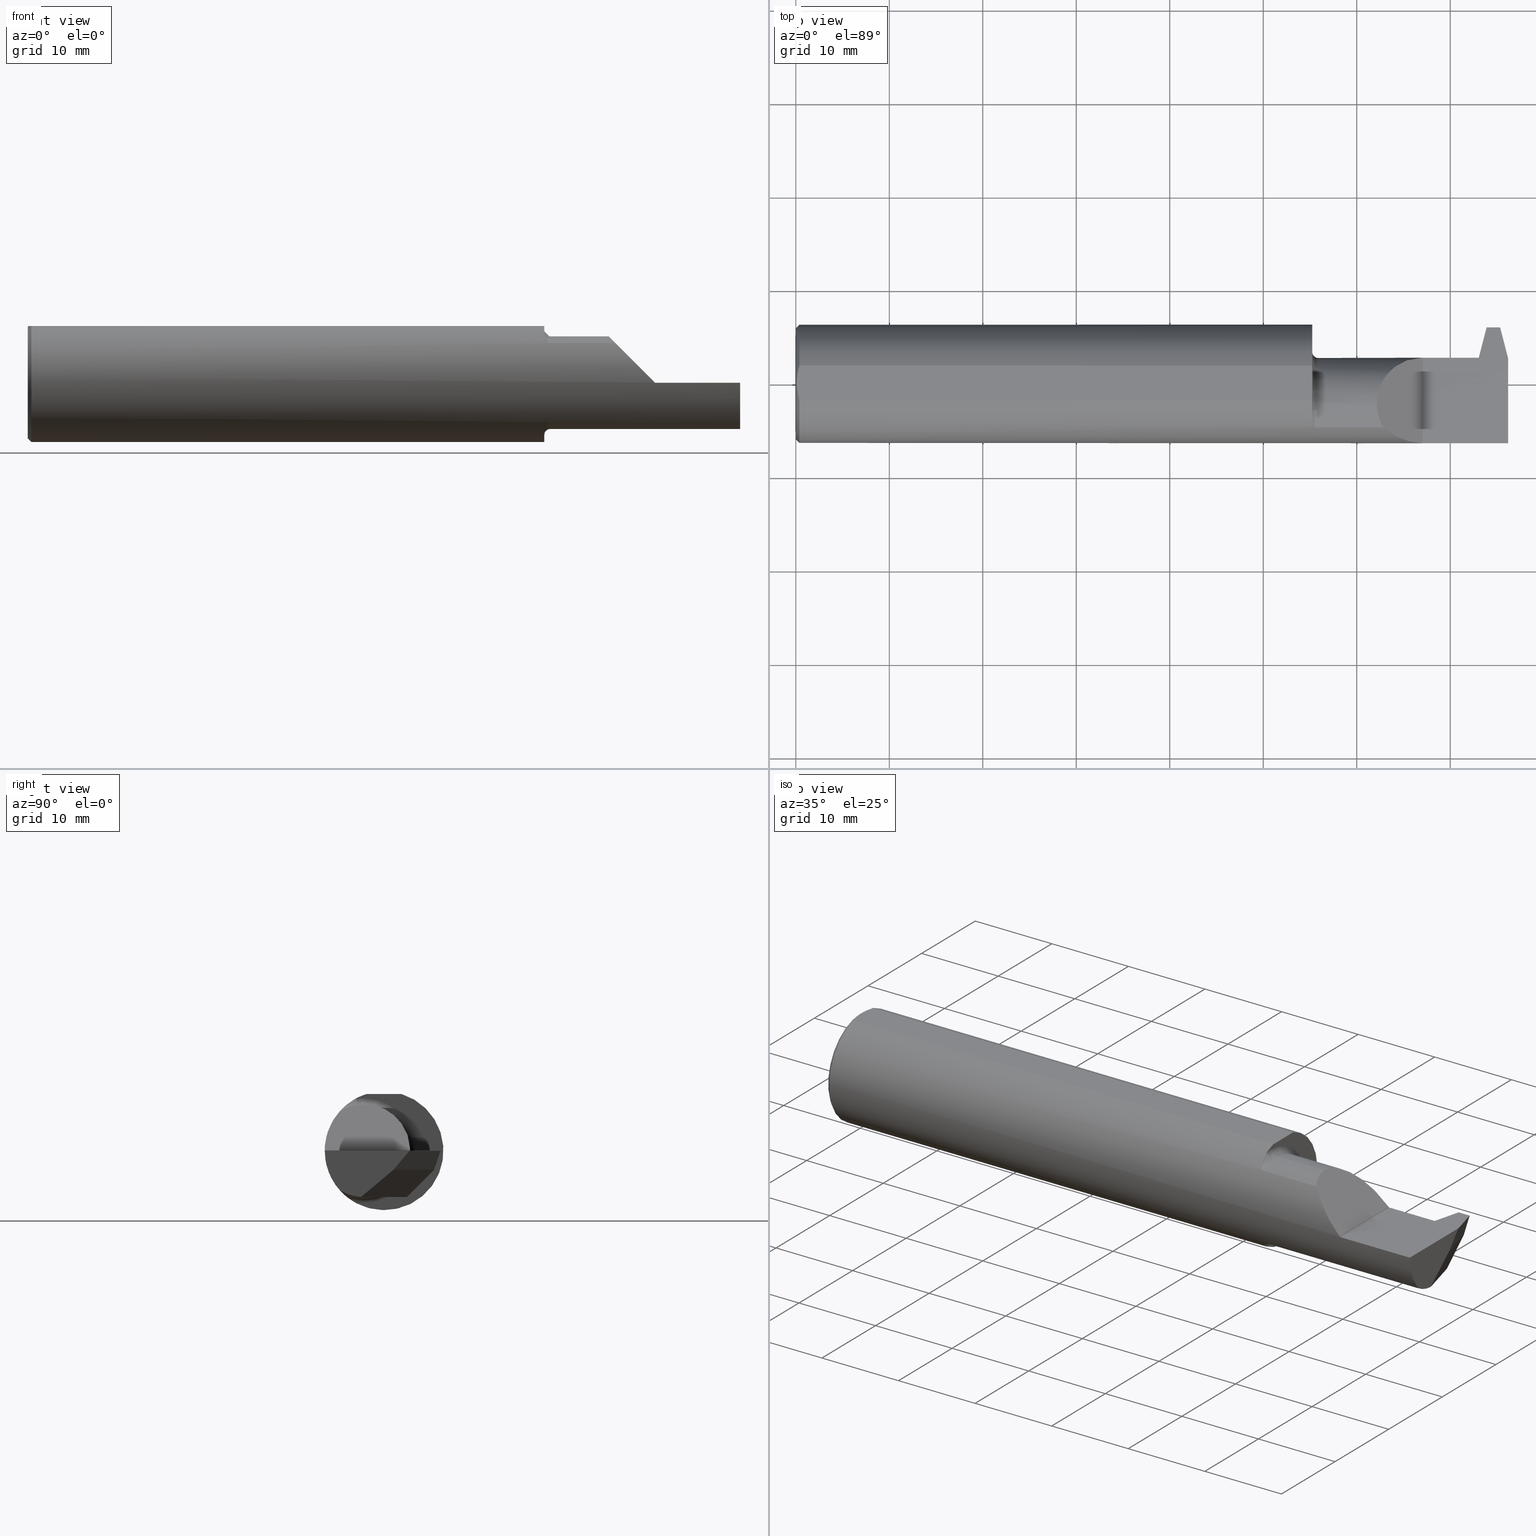
[diagram: canonical four-view strip — front | top / right | iso, engineering-drawing reading convention]
A machine part, canonical four-view strip (front | top / right | iso — engineering-drawing reading convention). The complete STEP part file that produces these views, byte-faithful:
ISO-10303-21;
HEADER;
FILE_DESCRIPTION (( 'STEP AP203' ),
    '1' );
FILE_NAME ('231093-FAT490750-6.STEP',
    '2024-05-24T15:50:27',
    ( '' ),
    ( '' ),
    'SwSTEP 2.0',
    'SolidWorks 2022',
    '' );
FILE_SCHEMA (( 'CONFIG_CONTROL_DESIGN' ));
ENDSEC;

DATA;
#1 = CARTESIAN_POINT ( 'NONE',  ( 2.446350000000000691, -0.08485000000000002263, 0.1950000000000000067 ) ) ;
#2 = DIRECTION ( 'NONE',  ( 0.000000000000000000, 0.000000000000000000, 1.000000000000000000 ) ) ;
#3 = ORIENTED_EDGE ( 'NONE', *, *, #292, .F. ) ;
#4 = VERTEX_POINT ( 'NONE', #39 ) ;
#5 = PRODUCT_RELATED_PRODUCT_CATEGORY ( 'detail', '', ( #31 ) ) ;
#6 = CARTESIAN_POINT ( 'NONE',  ( 2.193416617075089725, -0.1842851675631634878, -0.1687160800144227035 ) ) ;
#7 = ORIENTED_EDGE ( 'NONE', *, *, #927, .F. ) ;
#8 = ORIENTED_EDGE ( 'NONE', *, *, #701, .T. ) ;
#9 = DIRECTION ( 'NONE',  ( 0.000000000000000000, 0.000000000000000000, -1.000000000000000000 ) ) ;
#10 = ORIENTED_EDGE ( 'NONE', *, *, #909, .T. ) ;
#11 = AXIS2_PLACEMENT_3D ( 'NONE', #463, #308, #223 ) ;
#12 = VECTOR ( 'NONE', #260, 39.37007874015748143 ) ;
#13 = DIRECTION ( 'NONE',  ( 0.000000000000000000, 0.000000000000000000, 1.000000000000000000 ) ) ;
#14 = AXIS2_PLACEMENT_3D ( 'NONE', #475, #753, #239 ) ;
#15 = ORIENTED_EDGE ( 'NONE', *, *, #106, .T. ) ;
#16 = ORIENTED_EDGE ( 'NONE', *, *, #57, .T. ) ;
#17 = DIRECTION ( 'NONE',  ( 0.000000000000000000, 0.000000000000000000, 1.000000000000000000 ) ) ;
#18 = ADVANCED_FACE ( 'NONE', ( #773 ), #507, .T. ) ;
#19 = LINE ( 'NONE', #481, #402 ) ;
#20 = FACE_OUTER_BOUND ( 'NONE', #479, .T. ) ;
#21 = ORIENTED_EDGE ( 'NONE', *, *, #728, .T. ) ;
#22 = LINE ( 'NONE', #73, #650 ) ;
#23 = CARTESIAN_POINT ( 'NONE',  ( 2.200000000000000178, -0.08484999999999998099, 0.2200000000000000011 ) ) ;
#24 = ADVANCED_FACE ( 'NONE', ( #20 ), #82, .F. ) ;
#25 = CARTESIAN_POINT ( 'NONE',  ( 3.000000000000000444, -0.2498499999999999610, -6.123031769111886291E-17 ) ) ;
#26 = LOCAL_TIME ( 8, 50, 27.00000000000000000, #583 ) ;
#27 = ORIENTED_EDGE ( 'NONE', *, *, #831, .F. ) ;
#28 = CARTESIAN_POINT ( 'NONE',  ( 0.004000000000001628989, 0.02507688590673098211, 0.2388499999999999790 ) ) ;
#29 = VECTOR ( 'NONE', #519, 39.37007874015747433 ) ;
#30 = ADVANCED_FACE ( 'NONE', ( #949 ), #937, .F. ) ;
#31 = PRODUCT ( '231093-FAT490750-6', '231093-FAT490750-6', '', ( #736 ) ) ;
#32 = CARTESIAN_POINT ( 'NONE',  ( 2.925035482665956366, 0.09560379093680543283, -0.1950000000000000067 ) ) ;
#33 = AXIS2_PLACEMENT_3D ( 'NONE', #23, #332, #309 ) ;
#34 = PLANE ( 'NONE',  #762 ) ;
#35 = ORIENTED_EDGE ( 'NONE', *, *, #800, .T. ) ;
#36 = ADVANCED_FACE ( 'NONE', ( #643 ), #107, .F. ) ;
#37 = LINE ( 'NONE', #804, #963 ) ;
#38 = LINE ( 'NONE', #322, #339 ) ;
#39 = CARTESIAN_POINT ( 'NONE',  ( 3.000000000000000444, 0.1070816154887437449, 0.000000000000000000 ) ) ;
#40 = ORIENTED_EDGE ( 'NONE', *, *, #444, .T. ) ;
#41 = CARTESIAN_POINT ( 'NONE',  ( 0.01500000000000188856, 0.07331916529803116089, 0.2388499999999999790 ) ) ;
#42 = LINE ( 'NONE', #714, #386 ) ;
#43 = PERSON_AND_ORGANIZATION_ROLE ( 'design_supplier' ) ;
#44 = DIRECTION ( 'NONE',  ( -1.000000000000000000, -0.000000000000000000, -0.000000000000000000 ) ) ;
#45 = EDGE_LOOP ( 'NONE', ( #261, #934, #501, #640 ) ) ;
#46 =( BOUNDED_CURVE ( )  B_SPLINE_CURVE ( 3, ( #1, #295, #620, #859 ),
 .UNSPECIFIED., .F., .F. ) 
 B_SPLINE_CURVE_WITH_KNOTS ( ( 4, 4 ),
 ( 0.000000000000000000, 0.5466004890170860220 ),
 .UNSPECIFIED. ) 
 CURVE ( )  GEOMETRIC_REPRESENTATION_ITEM ( )  RATIONAL_B_SPLINE_CURVE ( ( 1.000000000000000000, 0.9752569136661353166, 0.9752569136661353166, 1.000000000000000000 ) ) 
 REPRESENTATION_ITEM ( '' )  );
#47 = DIRECTION ( 'NONE',  ( 1.000000000000000000, -0.000000000000000000, -0.000000000000000000 ) ) ;
#48 = LOCAL_TIME ( 8, 50, 27.00000000000000000, #598 ) ;
#49 = FACE_OUTER_BOUND ( 'NONE', #808, .T. ) ;
#50 = EDGE_LOOP ( 'NONE', ( #340, #751, #10, #858, #404, #812, #405, #150, #670, #135, #686, #604, #509 ) ) ;
#51 = DIRECTION ( 'NONE',  ( 0.000000000000000000, -0.2055210070593990190, -0.9786527043120508695 ) ) ;
#52 = EDGE_CURVE ( 'NONE', #965, #243, #565, .T. ) ;
#53 = CARTESIAN_POINT ( 'NONE',  ( 0.004000000000001630723, -8.838795635097487697E-18, 0.2388499999999999790 ) ) ;
#54 = DATE_AND_TIME ( #333, #77 ) ;
#55 = DIRECTION ( 'NONE',  ( 1.000000000000000000, 0.000000000000000000, 0.000000000000000000 ) ) ;
#56 = ORIENTED_EDGE ( 'NONE', *, *, #444, .F. ) ;
#57 = EDGE_CURVE ( 'NONE', #146, #731, #251, .T. ) ;
#58 = DIRECTION ( 'NONE',  ( -1.000000000000000000, 0.000000000000000000, -0.000000000000000000 ) ) ;
#59 = PERSON_AND_ORGANIZATION_ROLE ( 'classification_officer' ) ;
#60 = LINE ( 'NONE', #886, #698 ) ;
#61 = TOROIDAL_SURFACE ( 'NONE', #414, 0.2200000000000000011, 0.02500000000000000139 ) ;
#62 = VERTEX_POINT ( 'NONE', #555 ) ;
#63 = CARTESIAN_POINT ( 'NONE',  ( 0.01500000000000188856, 0.000000000000000000, -0.2498499999999999888 ) ) ;
#64 = CARTESIAN_POINT ( 'NONE',  ( 0.01500000000000188509, -0.07331916529803116089, 0.2388499999999999790 ) ) ;
#65 = APPROVAL_ROLE ( '' ) ;
#66 = CIRCLE ( 'NONE', #14, 0.2498499999999999888 ) ;
#67 = ORIENTED_EDGE ( 'NONE', *, *, #908, .F. ) ;
#68 = DIRECTION ( 'NONE',  ( 0.000000000000000000, 0.000000000000000000, 1.000000000000000000 ) ) ;
#69 = EDGE_CURVE ( 'NONE', #852, #302, #183, .T. ) ;
#70 = DIRECTION ( 'NONE',  ( 0.000000000000000000, -0.7071067811865435759, -0.7071067811865514585 ) ) ;
#71 = ORIENTED_EDGE ( 'NONE', *, *, #978, .T. ) ;
#72 = CARTESIAN_POINT ( 'NONE',  ( 2.865128570000010644, 0.2106037909368114192, -0.07999999999999277134 ) ) ;
#73 = CARTESIAN_POINT ( 'NONE',  ( 3.000000000000000444, 0.05591204140292282271, -0.06663337621120969667 ) ) ;
#74 = CYLINDRICAL_SURFACE ( 'NONE', #469, 0.1950000000000000067 ) ;
#75 = VERTEX_POINT ( 'NONE', #933 ) ;
#76 = CARTESIAN_POINT ( 'NONE',  ( 2.175000000000000266, -0.08484999999999998099, 0.2200000000000000011 ) ) ;
#77 = LOCAL_TIME ( 8, 50, 27.00000000000000000, #409 ) ;
#78 = LINE ( 'NONE', #530, #173 ) ;
#79 = ORIENTED_EDGE ( 'NONE', *, *, #69, .F. ) ;
#80 = CARTESIAN_POINT ( 'NONE',  ( 2.875000000000000444, -0.03642100170329706094, -0.1888905294713791316 ) ) ;
#81 = ORIENTED_EDGE ( 'NONE', *, *, #831, .T. ) ;
#82 = TOROIDAL_SURFACE ( 'NONE', #575, 0.2200000000000000011, 0.02500000000000000139 ) ;
#83 = EDGE_CURVE ( 'NONE', #318, #527, #579, .T. ) ;
#84 = ORIENTED_EDGE ( 'NONE', *, *, #539, .F. ) ;
#85 = CARTESIAN_POINT ( 'NONE',  ( 2.876000360214729490, 0.1101499999999999563, 0.000000000000000000 ) ) ;
#86 = ORIENTED_EDGE ( 'NONE', *, *, #496, .F. ) ;
#87 = ORIENTED_EDGE ( 'NONE', *, *, #139, .F. ) ;
#88 = VECTOR ( 'NONE', #969, 39.37007874015748143 ) ;
#89 = CARTESIAN_POINT ( 'NONE',  ( 2.875000000000000444, -0.08485000000000002263, 0.000000000000000000 ) ) ;
#90 = VERTEX_POINT ( 'NONE', #467 ) ;
#91 = VECTOR ( 'NONE', #717, 39.37007874015748854 ) ;
#92 = ADVANCED_FACE ( 'NONE', ( #334 ), #34, .T. ) ;
#93 = CARTESIAN_POINT ( 'NONE',  ( 2.869008559366363453, 0.09276125059353886038, -0.08049374921445398567 ) ) ;
#94 = VECTOR ( 'NONE', #263, 39.37007874015748143 ) ;
#95 = EDGE_CURVE ( 'NONE', #612, #876, #926, .T. ) ;
#96 = EDGE_CURVE ( 'NONE', #102, #887, #257, .T. ) ;
#97 = CARTESIAN_POINT ( 'NONE',  ( 2.844738196388977070, 0.1045796707247016871, -0.05362832365497344905 ) ) ;
#98 = VECTOR ( 'NONE', #730, 39.37007874015748854 ) ;
#99 = DIRECTION ( 'NONE',  ( -5.487493880857611755E-16, 0.6427876096865381417, -0.7660444431189791237 ) ) ;
#100 = FACE_OUTER_BOUND ( 'NONE', #376, .T. ) ;
#101 = DIRECTION ( 'NONE',  ( -1.000000000000000000, -0.000000000000000000, -0.000000000000000000 ) ) ;
#102 = VERTEX_POINT ( 'NONE', #627 ) ;
#103 = ORIENTED_EDGE ( 'NONE', *, *, #666, .F. ) ;
#104 = CARTESIAN_POINT ( 'NONE',  ( 2.865128570000000430, 0.1730363691085599620, -0.1891037151198368682 ) ) ;
#105 = CARTESIAN_POINT ( 'NONE',  ( 2.176293471060600559, -0.1495312910450006805, 0.2006610765018840559 ) ) ;
#106 = EDGE_CURVE ( 'NONE', #916, #876, #277, .T. ) ;
#107 = PLANE ( 'NONE',  #422 ) ;
#108 = EDGE_LOOP ( 'NONE', ( #537, #311, #56, #238, #231, #513, #116, #429 ) ) ;
#109 = DIRECTION ( 'NONE',  ( 1.000000000000000000, 0.000000000000000000, 0.000000000000000000 ) ) ;
#110 = LINE ( 'NONE', #182, #805 ) ;
#111 = VECTOR ( 'NONE', #169, 39.37007874015748143 ) ;
#112 = CARTESIAN_POINT ( 'NONE',  ( 2.175000000000000266, -0.1250709781968178946, -0.2162921009026707309 ) ) ;
#113 = ORIENTED_EDGE ( 'NONE', *, *, #825, .F. ) ;
#114 = CARTESIAN_POINT ( 'NONE',  ( 0.01500000000000188856, 0.07331916529803116089, 0.2388499999999999790 ) ) ;
#115 = ORIENTED_EDGE ( 'NONE', *, *, #83, .T. ) ;
#116 = ORIENTED_EDGE ( 'NONE', *, *, #792, .F. ) ;
#117 = FACE_OUTER_BOUND ( 'NONE', #696, .T. ) ;
#118 = CARTESIAN_POINT ( 'NONE',  ( 2.579423879288050170, 1.666229512840833760, -0.07999999999950303808 ) ) ;
#119 = SHAPE_DEFINITION_REPRESENTATION ( #662, #520 ) ;
#120 = AXIS2_PLACEMENT_3D ( 'NONE', #514, #360, #813 ) ;
#121 = CC_DESIGN_DATE_AND_TIME_ASSIGNMENT ( #647, #968, ( #606 ) ) ;
#122 = DIRECTION ( 'NONE',  ( 1.000000000000000000, 0.000000000000000000, 0.000000000000000000 ) ) ;
#123 = ORIENTED_EDGE ( 'NONE', *, *, #362, .F. ) ;
#124 = FACE_OUTER_BOUND ( 'NONE', #454, .T. ) ;
#125 = AXIS2_PLACEMENT_3D ( 'NONE', #744, #284, #68 ) ;
#126 = EDGE_CURVE ( 'NONE', #590, #614, #870, .T. ) ;
#127 = CARTESIAN_POINT ( 'NONE',  ( 2.875000000000000444, 0.1426008217676462408, -0.03867338342422693004 ) ) ;
#128 = DIRECTION ( 'NONE',  ( 0.000000000000000000, 0.000000000000000000, 1.000000000000000000 ) ) ;
#129 = EDGE_CURVE ( 'NONE', #920, #390, #440, .T. ) ;
#130 = ORIENTED_EDGE ( 'NONE', *, *, #178, .T. ) ;
#131 = PLANE ( 'NONE',  #465 ) ;
#132 = DIRECTION ( 'NONE',  ( 0.000000000000000000, 0.000000000000000000, -1.000000000000000000 ) ) ;
#133 = APPROVAL_STATUS ( 'not_yet_approved' ) ;
#134 = CARTESIAN_POINT ( 'NONE',  ( 0.000000000000000000, 0.000000000000000000, 0.000000000000000000 ) ) ;
#135 = ORIENTED_EDGE ( 'NONE', *, *, #164, .T. ) ;
#136 = DIRECTION ( 'NONE',  ( 0.000000000000000000, 0.000000000000000000, -1.000000000000000000 ) ) ;
#137 = CARTESIAN_POINT ( 'NONE',  ( 2.640000000000000124, 0.2999999999999999889, -6.123031769111886291E-17 ) ) ;
#138 = CYLINDRICAL_SURFACE ( 'NONE', #814, 0.1950000000000000067 ) ;
#139 = EDGE_CURVE ( 'NONE', #743, #460, #840, .T. ) ;
#140 = ORIENTED_EDGE ( 'NONE', *, *, #406, .T. ) ;
#141 = DIRECTION ( 'NONE',  ( -1.000000000000000000, 7.016512825954649552E-14, 7.016512825954729069E-14 ) ) ;
#142 = CARTESIAN_POINT ( 'NONE',  ( 2.200000000000000178, -0.08485000000000002263, -0.2200000000000000011 ) ) ;
#143 = AXIS2_PLACEMENT_3D ( 'NONE', #872, #420, #732 ) ;
#144 = LENGTH_MEASURE_WITH_UNIT ( LENGTH_MEASURE( 0.02539999999999999897 ), #428 );
#145 = CIRCLE ( 'NONE', #704, 0.2498499999999999888 ) ;
#146 = VERTEX_POINT ( 'NONE', #835 ) ;
#147 = DIRECTION ( 'NONE',  ( 1.000000000000000000, 0.000000000000000000, 0.000000000000000000 ) ) ;
#148 = VECTOR ( 'NONE', #757, 39.37007874015748143 ) ;
#149 = LINE ( 'NONE', #367, #218 ) ;
#150 = ORIENTED_EDGE ( 'NONE', *, *, #269, .F. ) ;
#151 = CARTESIAN_POINT ( 'NONE',  ( 2.856000360214729472, 0.1101499999999999285, 0.000000000000000000 ) ) ;
#152 = EDGE_CURVE ( 'NONE', #283, #938, #609, .T. ) ;
#153 = LINE ( 'NONE', #449, #148 ) ;
#154 = CARTESIAN_POINT ( 'NONE',  ( 2.188813695058260844, -0.1803944576976549974, -0.1728909059399327819 ) ) ;
#155 = ORIENTED_EDGE ( 'NONE', *, *, #317, .T. ) ;
#156 = DIRECTION ( 'NONE',  ( 0.2503800040544345018, 0.9681476403781096307, -0.000000000000000000 ) ) ;
#157 = EDGE_LOOP ( 'NONE', ( #81, #923, #755, #35 ) ) ;
#158 = AXIS2_PLACEMENT_3D ( 'NONE', #702, #918, #979 ) ;
#159 = ORIENTED_EDGE ( 'NONE', *, *, #539, .T. ) ;
#160 = ORIENTED_EDGE ( 'NONE', *, *, #457, .T. ) ;
#161 = DIRECTION ( 'NONE',  ( 1.000000000000000000, -0.000000000000000000, -0.000000000000000000 ) ) ;
#162 = EDGE_CURVE ( 'NONE', #612, #171, #188, .T. ) ;
#163 = ORIENTED_EDGE ( 'NONE', *, *, #865, .F. ) ;
#164 = EDGE_CURVE ( 'NONE', #664, #359, #836, .T. ) ;
#165 = CARTESIAN_POINT ( 'NONE',  ( 0.000000000000000000, 0.1000000000000000056, 0.2388499999999999790 ) ) ;
#166 = AXIS2_PLACEMENT_3D ( 'NONE', #528, #959, #595 ) ;
#167 = CARTESIAN_POINT ( 'NONE',  ( 2.640000000000000124, 0.2999999999999999889, -6.123031769111886291E-17 ) ) ;
#168 = LOCAL_TIME ( 8, 50, 27.00000000000000000, #807 ) ;
#169 = DIRECTION ( 'NONE',  ( 1.000000000000000000, 0.000000000000000000, 0.000000000000000000 ) ) ;
#170 = CIRCLE ( 'NONE', #884, 0.1950000000000000067 ) ;
#171 = VERTEX_POINT ( 'NONE', #305 ) ;
#172 = CARTESIAN_POINT ( 'NONE',  ( 2.998911043542020760, -0.09271680594006928566, -0.1948809690765552771 ) ) ;
#173 = VECTOR ( 'NONE', #296, 39.37007874015748143 ) ;
#174 = CARTESIAN_POINT ( 'NONE',  ( 3.000000000000000444, 0.2999999999999999889, -6.123031769111886291E-17 ) ) ;
#175 = ORIENTED_EDGE ( 'NONE', *, *, #331, .F. ) ;
#176 = ORIENTED_EDGE ( 'NONE', *, *, #69, .T. ) ;
#177 = PLANE ( 'NONE',  #576 ) ;
#178 = EDGE_CURVE ( 'NONE', #726, #283, #78, .T. ) ;
#179 = DIRECTION ( 'NONE',  ( 0.000000000000000000, 0.000000000000000000, -1.000000000000000000 ) ) ;
#180 = ORIENTED_EDGE ( 'NONE', *, *, #690, .F. ) ;
#181 = DIRECTION ( 'NONE',  ( 0.000000000000000000, -1.000000000000000000, 0.000000000000000000 ) ) ;
#182 = CARTESIAN_POINT ( 'NONE',  ( 2.876000360214729490, 0.09334967799373215802, -0.07999999999997724209 ) ) ;
#183 = LINE ( 'NONE', #724, #12 ) ;
#184 = VERTEX_POINT ( 'NONE', #623 ) ;
#185 = DIRECTION ( 'NONE',  ( -1.000000000000000000, -0.000000000000000000, -0.000000000000000000 ) ) ;
#186 = VECTOR ( 'NONE', #853, 39.37007874015748143 ) ;
#187 = FACE_OUTER_BOUND ( 'NONE', #459, .T. ) ;
#188 = CIRCLE ( 'NONE', #240, 0.1950000000000000344 ) ;
#189 = DIRECTION ( 'NONE',  ( 1.000000000000000000, 0.000000000000000000, 0.000000000000000000 ) ) ;
#190 = ORIENTED_EDGE ( 'NONE', *, *, #733, .T. ) ;
#191 = DIRECTION ( 'NONE',  ( -0.1200238624775789714, -0.3232146245633265025, -0.9386834284807370476 ) ) ;
#192 = LINE ( 'NONE', #511, #770 ) ;
#193 = APPROVAL_ROLE ( '' ) ;
#194 = ORIENTED_EDGE ( 'NONE', *, *, #782, .T. ) ;
#195 = ADVANCED_FACE ( 'NONE', ( #754 ), #74, .T. ) ;
#196 = EDGE_CURVE ( 'NONE', #146, #4, #554, .T. ) ;
#197 = CARTESIAN_POINT ( 'NONE',  ( 2.869008559366363453, -0.08485000000000002263, 0.000000000000000000 ) ) ;
#198 = DIRECTION ( 'NONE',  ( 0.7071067811865547892, 0.000000000000000000, -0.7071067811865402453 ) ) ;
#199 = VECTOR ( 'NONE', #756, 39.37007874015748143 ) ;
#200 = APPLICATION_PROTOCOL_DEFINITION ( 'international standard', 'config_control_design', 1994, #410 ) ;
#201 = ORIENTED_EDGE ( 'NONE', *, *, #549, .T. ) ;
#202 = LINE ( 'NONE', #877, #607 ) ;
#203 = CARTESIAN_POINT ( 'NONE',  ( 2.526400416310738084, 0.1093588493630081732, 0.1149495836892616141 ) ) ;
#204 = PERSON_AND_ORGANIZATION ( #653, #552 ) ;
#205 = VECTOR ( 'NONE', #571, 39.37007874015748143 ) ;
#206 = ORIENTED_EDGE ( 'NONE', *, *, #847, .F. ) ;
#207 = DIRECTION ( 'NONE',  ( 0.000000000000000000, -0.7660444431189791237, -0.6427876096865380307 ) ) ;
#208 = CARTESIAN_POINT ( 'NONE',  ( 0.01500000000000188856, 0.000000000000000000, 0.000000000000000000 ) ) ;
#209 = EDGE_CURVE ( 'NONE', #213, #743, #110, .T. ) ;
#210 = CARTESIAN_POINT ( 'NONE',  ( 2.889008559366363471, 3.895685540389323798, 3.110538619748298483 ) ) ;
#211 = CARTESIAN_POINT ( 'NONE',  ( 3.000000000000000444, 0.06286025547322807161, -0.05272348611339076202 ) ) ;
#212 = PERSON_AND_ORGANIZATION_ROLE ( 'design_owner' ) ;
#213 = VERTEX_POINT ( 'NONE', #637 ) ;
#214 = CARTESIAN_POINT ( 'NONE',  ( 2.944425059697839853, 0.1705777223505302587, -0.1950000000000000622 ) ) ;
#215 = LINE ( 'NONE', #929, #384 ) ;
#216 = AXIS2_PLACEMENT_3D ( 'NONE', #829, #687, #289 ) ;
#217 = DIRECTION ( 'NONE',  ( 0.000000000000000000, 0.000000000000000000, 1.000000000000000000 ) ) ;
#218 = VECTOR ( 'NONE', #523, 39.37007874015748854 ) ;
#219 = ORIENTED_EDGE ( 'NONE', *, *, #482, .F. ) ;
#220 = CARTESIAN_POINT ( 'NONE',  ( 2.200000000000000178, -0.1862082793164408501, -0.1665878123213411499 ) ) ;
#221 = ADVANCED_FACE ( 'NONE', ( #476 ), #706, .F. ) ;
#222 = CIRCLE ( 'NONE', #303, 0.2498499999999999888 ) ;
#223 = DIRECTION ( 'NONE',  ( 0.000000000000000000, 0.000000000000000000, -1.000000000000000000 ) ) ;
#224 = DIRECTION ( 'NONE',  ( -1.000000000000000000, -0.000000000000000000, -0.000000000000000000 ) ) ;
#225 = ORIENTED_EDGE ( 'NONE', *, *, #482, .T. ) ;
#226 = DIRECTION ( 'NONE',  ( 0.000000000000000000, 0.000000000000000000, -1.000000000000000000 ) ) ;
#227 = ORIENTED_EDGE ( 'NONE', *, *, #635, .T. ) ;
#228 = CARTESIAN_POINT ( 'NONE',  ( 2.196370180837897035, -0.1857053627698156684, -0.1671515984899562823 ) ) ;
#229 = ORIENTED_EDGE ( 'NONE', *, *, #246, .F. ) ;
#230 = EDGE_CURVE ( 'NONE', #283, #887, #525, .T. ) ;
#231 = ORIENTED_EDGE ( 'NONE', *, *, #830, .T. ) ;
#232 = DIRECTION ( 'NONE',  ( -0.000000000000000000, 0.7660444431189790127, 0.6427876096865381417 ) ) ;
#233 = EDGE_LOOP ( 'NONE', ( #618, #325 ) ) ;
#234 = ORIENTED_EDGE ( 'NONE', *, *, #230, .F. ) ;
#235 = FACE_OUTER_BOUND ( 'NONE', #267, .T. ) ;
#236 = CARTESIAN_POINT ( 'NONE',  ( 2.196379501438356030, -0.1857108401697049604, 0.1671455953877453160 ) ) ;
#237 = CARTESIAN_POINT ( 'NONE',  ( 2.180828878631586143, -0.1657311752962013496, -0.1871053287252796016 ) ) ;
#238 = ORIENTED_EDGE ( 'NONE', *, *, #209, .T. ) ;
#239 = DIRECTION ( 'NONE',  ( 0.000000000000000000, 0.000000000000000000, -1.000000000000000000 ) ) ;
#240 = AXIS2_PLACEMENT_3D ( 'NONE', #758, #161, #768 ) ;
#241 = CC_DESIGN_PERSON_AND_ORGANIZATION_ASSIGNMENT ( #962, #43, ( #882 ) ) ;
#242 = CARTESIAN_POINT ( 'NONE',  ( 2.187118484253501194, -0.1780926133871663652, 0.1752686114729513633 ) ) ;
#243 = VERTEX_POINT ( 'NONE', #632 ) ;
#244 = VERTEX_POINT ( 'NONE', #941 ) ;
#245 = DIRECTION ( 'NONE',  ( 1.000000000000000000, 8.537024980200913523E-16, -0.000000000000000000 ) ) ;
#246 = EDGE_CURVE ( 'NONE', #390, #651, #19, .T. ) ;
#247 = DIRECTION ( 'NONE',  ( 0.000000000000000000, 0.000000000000000000, -1.000000000000000000 ) ) ;
#248 = EDGE_LOOP ( 'NONE', ( #27, #115, #951, #531, #306, #86 ) ) ;
#249 = DIRECTION ( 'NONE',  ( 1.000000000000000000, 0.000000000000000000, 0.000000000000000000 ) ) ;
#250 = PLANE ( 'NONE',  #304 ) ;
#251 = LINE ( 'NONE', #25, #950 ) ;
#252 = EDGE_LOOP ( 'NONE', ( #917, #130, #791, #335 ) ) ;
#253 = LINE ( 'NONE', #485, #538 ) ;
#254 = VECTOR ( 'NONE', #667, 39.37007874015748854 ) ;
#255 = FACE_OUTER_BOUND ( 'NONE', #880, .T. ) ;
#256 = CALENDAR_DATE ( 2024, 24, 5 ) ;
#257 = CIRCLE ( 'NONE', #819, 0.2200000000000000011 ) ;
#258 = EDGE_CURVE ( 'NONE', #624, #302, #646, .T. ) ;
#259 = VECTOR ( 'NONE', #544, 39.37007874015748143 ) ;
#260 = DIRECTION ( 'NONE',  ( -1.000000000000000000, 4.600533710977337560E-14, 0.000000000000000000 ) ) ;
#261 = ORIENTED_EDGE ( 'NONE', *, *, #323, .F. ) ;
#262 = DIRECTION ( 'NONE',  ( 0.000000000000000000, -1.000000000000000000, 2.833219857418689288E-16 ) ) ;
#263 = DIRECTION ( 'NONE',  ( -1.000000000000000000, -8.537024980200911551E-16, 2.174519450576732134E-31 ) ) ;
#264 = DATE_TIME_ROLE ( 'creation_date' ) ;
#265 = DIRECTION ( 'NONE',  ( 0.000000000000000000, 0.000000000000000000, -1.000000000000000000 ) ) ;
#266 = ADVANCED_FACE ( 'NONE', ( #392 ), #250, .T. ) ;
#267 = EDGE_LOOP ( 'NONE', ( #452, #442, #190, #518, #381 ) ) ;
#268 = CARTESIAN_POINT ( 'NONE',  ( 2.889008559366363471, 0.09334967799373290742, -0.07999999999997674249 ) ) ;
#269 = EDGE_CURVE ( 'NONE', #541, #869, #695, .T. ) ;
#270 = CARTESIAN_POINT ( 'NONE',  ( 2.875000000000000444, 0.1101499999999999563, 7.040103506324968706E-18 ) ) ;
#271 = APPLICATION_PROTOCOL_DEFINITION ( 'international standard', 'config_control_design', 1994, #461 ) ;
#272 = ORIENTED_EDGE ( 'NONE', *, *, #729, .F. ) ;
#273 = PLANE ( 'NONE',  #419 ) ;
#274 = VECTOR ( 'NONE', #249, 39.37007874015748143 ) ;
#275 = LINE ( 'NONE', #801, #953 ) ;
#276 = PERSON_AND_ORGANIZATION_ROLE ( 'creator' ) ;
#277 = B_SPLINE_CURVE_WITH_KNOTS ( 'NONE', 3,
 ( #112, #778, #483, #237, #850, #315, #154, #542, #6, #228, #446, #617 ),
 .UNSPECIFIED., .F., .F.,
 ( 4, 2, 2, 2, 2, 4 ),
 ( 0.000000000000000000, 0.001097037258504890162, 0.001645555887757337412, 0.001919815202383554856, 0.002056944859696663037, 0.002194074517009771217 ),
 .UNSPECIFIED. ) ;
#278 = DIRECTION ( 'NONE',  ( 0.000000000000000000, 0.000000000000000000, -1.000000000000000000 ) ) ;
#279 = ORIENTED_EDGE ( 'NONE', *, *, #960, .T. ) ;
#280 = FACE_OUTER_BOUND ( 'NONE', #300, .T. ) ;
#281 = CARTESIAN_POINT ( 'NONE',  ( 2.876000360214729490, 0.1101499999999999563, 0.000000000000000000 ) ) ;
#282 = CALENDAR_DATE ( 2024, 24, 5 ) ;
#283 = VERTEX_POINT ( 'NONE', #781 ) ;
#284 = DIRECTION ( 'NONE',  ( -1.000000000000000000, -0.000000000000000000, -0.000000000000000000 ) ) ;
#285 = CARTESIAN_POINT ( 'NONE',  ( 3.000000000000000444, -0.1862082793164407113, -0.1665878123213411777 ) ) ;
#286 = CARTESIAN_POINT ( 'NONE',  ( 2.175000000000000266, -0.07331916529803114702, 0.2388499999999999790 ) ) ;
#287 = AXIS2_PLACEMENT_3D ( 'NONE', #901, #879, #349 ) ;
#288 = ORIENTED_EDGE ( 'NONE', *, *, #548, .T. ) ;
#289 = DIRECTION ( 'NONE',  ( -0.2945363905204977928, 0.000000000000000000, 0.9556402642517510815 ) ) ;
#290 = AXIS2_PLACEMENT_3D ( 'NONE', #134, #128, #55 ) ;
#291 = CARTESIAN_POINT ( 'NONE',  ( 2.950171339358596878, 0.09560379093680541895, -0.1950000000000000344 ) ) ;
#292 = EDGE_CURVE ( 'NONE', #938, #102, #320, .T. ) ;
#293 = ORIENTED_EDGE ( 'NONE', *, *, #824, .F. ) ;
#294 = LINE ( 'NONE', #214, #29 ) ;
#295 = CARTESIAN_POINT ( 'NONE',  ( 2.446349999999999802, -0.1208286073214975276, 0.1950000000000000344 ) ) ;
#296 = DIRECTION ( 'NONE',  ( -1.000000000000000000, -0.000000000000000000, -0.000000000000000000 ) ) ;
#297 = ORIENTED_EDGE ( 'NONE', *, *, #597, .T. ) ;
#298 = DIRECTION ( 'NONE',  ( -1.000000000000000000, -0.000000000000000000, -0.000000000000000000 ) ) ;
#299 = VECTOR ( 'NONE', #665, 39.37007874015748143 ) ;
#300 = EDGE_LOOP ( 'NONE', ( #234, #375, #644, #494 ) ) ;
#301 = ADVANCED_FACE ( 'NONE', ( #187 ), #936, .T. ) ;
#302 = VERTEX_POINT ( 'NONE', #403 ) ;
#303 = AXIS2_PLACEMENT_3D ( 'NONE', #492, #356, #132 ) ;
#304 = AXIS2_PLACEMENT_3D ( 'NONE', #408, #790, #247 ) ;
#305 = CARTESIAN_POINT ( 'NONE',  ( 3.000000000000000444, -0.09664390695082392124, -0.1946430162087387505 ) ) ;
#306 = ORIENTED_EDGE ( 'NONE', *, *, #374, .T. ) ;
#307 = ORIENTED_EDGE ( 'NONE', *, *, #374, .F. ) ;
#308 = DIRECTION ( 'NONE',  ( 1.000000000000000000, 0.000000000000000000, 0.000000000000000000 ) ) ;
#309 = DIRECTION ( 'NONE',  ( 0.000000000000000000, 0.000000000000000000, 1.000000000000000000 ) ) ;
#310 = ORIENTED_EDGE ( 'NONE', *, *, #825, .T. ) ;
#311 = ORIENTED_EDGE ( 'NONE', *, *, #533, .F. ) ;
#312 = DIRECTION ( 'NONE',  ( 0.000000000000000000, 0.000000000000000000, -1.000000000000000000 ) ) ;
#313 = DIRECTION ( 'NONE',  ( -0.000000000000000000, 1.000000000000000000, -0.000000000000000000 ) ) ;
#314 =( GEOMETRIC_REPRESENTATION_CONTEXT ( 3 ) GLOBAL_UNCERTAINTY_ASSIGNED_CONTEXT ( ( #382 ) ) GLOBAL_UNIT_ASSIGNED_CONTEXT ( ( #599, #439, #896 ) ) REPRESENTATION_CONTEXT ( 'NONE', 'WORKASPACE' ) );
#315 = CARTESIAN_POINT ( 'NONE',  ( 2.187135037345901978, -0.1781181496382315821, -0.1752430622336076105 ) ) ;
#316 = VECTOR ( 'NONE', #181, 39.37007874015748143 ) ;
#317 = EDGE_CURVE ( 'NONE', #244, #527, #42, .T. ) ;
#318 = VERTEX_POINT ( 'NONE', #32 ) ;
#319 = CARTESIAN_POINT ( 'NONE',  ( 2.940817552797493573, 0.1700572141076777954, -0.1977558094796711408 ) ) ;
#320 = B_SPLINE_CURVE_WITH_KNOTS ( 'NONE', 3,
 ( #466, #925, #236, #777, #709, #569, #242, #866, #722, #105, #545, #559 ),
 .UNSPECIFIED., .F., .F.,
 ( 4, 2, 2, 2, 2, 4 ),
 ( 0.000000000000000000, 0.0001393948641635522000, 0.0002787897283271044001, 0.0005575794566542089086, 0.001115158913308419552, 0.002230317826616845175 ),
 .UNSPECIFIED. ) ;
#321 = VECTOR ( 'NONE', #378, 39.37007874015748143 ) ;
#322 = CARTESIAN_POINT ( 'NONE',  ( 2.928472014132509127, 0.2459435353079856557, -0.07999999999992046806 ) ) ;
#323 = EDGE_CURVE ( 'NONE', #743, #624, #38, .T. ) ;
#324 = DIRECTION ( 'NONE',  ( 0.000000000000000000, 0.7660444431189790127, 0.6427876096865380307 ) ) ;
#325 = ORIENTED_EDGE ( 'NONE', *, *, #851, .F. ) ;
#326 = CARTESIAN_POINT ( 'NONE',  ( 3.000000000000000444, 0.000000000000000000, 0.000000000000000000 ) ) ;
#327 = CARTESIAN_POINT ( 'NONE',  ( 0.004000000000001630723, -8.838795635097487697E-18, 0.2388499999999999790 ) ) ;
#328 = DIRECTION ( 'NONE',  ( -0.7071067811865494601, 0.000000000000000000, -0.7071067811865456854 ) ) ;
#329 = VERTEX_POINT ( 'NONE', #327 ) ;
#330 = LINE ( 'NONE', #319, #833 ) ;
#331 = EDGE_CURVE ( 'NONE', #75, #841, #621, .T. ) ;
#332 = DIRECTION ( 'NONE',  ( 0.000000000000000000, 1.000000000000000000, -1.224646799147353207E-16 ) ) ;
#333 = CALENDAR_DATE ( 2024, 24, 5 ) ;
#334 = FACE_OUTER_BOUND ( 'NONE', #108, .T. ) ;
#335 = ORIENTED_EDGE ( 'NONE', *, *, #908, .T. ) ;
#336 = DIRECTION ( 'NONE',  ( 0.000000000000000000, 0.000000000000000000, 1.000000000000000000 ) ) ;
#337 = DIRECTION ( 'NONE',  ( -0.000000000000000000, 1.000000000000000000, -2.833219857418689288E-16 ) ) ;
#338 = AXIS2_PLACEMENT_3D ( 'NONE', #699, #450, #9 ) ;
#339 = VECTOR ( 'NONE', #718, 39.37007874015748854 ) ;
#340 = ORIENTED_EDGE ( 'NONE', *, *, #129, .T. ) ;
#341 = CARTESIAN_POINT ( 'NONE',  ( 2.175000000000000266, 0.000000000000000000, 0.000000000000000000 ) ) ;
#342 = LINE ( 'NONE', #655, #94 ) ;
#343 = SECURITY_CLASSIFICATION_LEVEL ( 'unclassified' ) ;
#344 = EDGE_CURVE ( 'NONE', #731, #75, #145, .T. ) ;
#345 = ORIENTED_EDGE ( 'NONE', *, *, #742, .T. ) ;
#346 = DIRECTION ( 'NONE',  ( 0.2055210070593990190, 0.000000000000000000, 0.9786527043120508695 ) ) ;
#347 = APPROVAL ( #656, 'UNSPECIFIED' ) ;
#348 = CARTESIAN_POINT ( 'NONE',  ( 0.004000000000001633325, -0.02498450228869505615, 0.2388499999999999790 ) ) ;
#349 = DIRECTION ( 'NONE',  ( 0.2503800040544378325, -0.9681476403781086315, 0.000000000000000000 ) ) ;
#350 = ORIENTED_EDGE ( 'NONE', *, *, #915, .F. ) ;
#351 = DIRECTION ( 'NONE',  ( -0.000000000000000000, 0.000000000000000000, 1.000000000000000000 ) ) ;
#352 = LINE ( 'NONE', #211, #948 ) ;
#353 = PERSON_AND_ORGANIZATION ( #653, #552 ) ;
#354 = DIRECTION ( 'NONE',  ( -1.000000000000000000, -0.000000000000000000, -0.000000000000000000 ) ) ;
#355 = ORIENTED_EDGE ( 'NONE', *, *, #209, .F. ) ;
#356 = DIRECTION ( 'NONE',  ( 1.000000000000000000, -0.000000000000000000, -0.000000000000000000 ) ) ;
#357 = FACE_OUTER_BOUND ( 'NONE', #252, .T. ) ;
#358 = APPROVAL ( #133, 'UNSPECIFIED' ) ;
#359 = VERTEX_POINT ( 'NONE', #878 ) ;
#360 = DIRECTION ( 'NONE',  ( -1.000000000000000000, -0.000000000000000000, -0.000000000000000000 ) ) ;
#361 = CARTESIAN_POINT ( 'NONE',  ( 0.000000000000000000, 2.967931517733600783E-17, 0.2348499999999984211 ) ) ;
#362 = EDGE_CURVE ( 'NONE', #651, #418, #818, .T. ) ;
#363 = CARTESIAN_POINT ( 'NONE',  ( 2.175000000000000266, -0.08485000000000002263, 0.000000000000000000 ) ) ;
#364 = ORIENTED_EDGE ( 'NONE', *, *, #622, .T. ) ;
#365 = CARTESIAN_POINT ( 'NONE',  ( 2.200000000000000178, -0.08485000000000002263, 0.000000000000000000 ) ) ;
#366 = APPROVAL_PERSON_ORGANIZATION ( #802, #347, #193 ) ;
#367 = CARTESIAN_POINT ( 'NONE',  ( 2.959700516520066049, 0.2877597428298782622, -0.002844048106925039631 ) ) ;
#368 = CIRCLE ( 'NONE', #902, 0.2498499999999999888 ) ;
#369 = EDGE_CURVE ( 'NONE', #590, #845, #192, .T. ) ;
#370 = B_SPLINE_CURVE_WITH_KNOTS ( 'NONE', 3,
 ( #53, #348, #577, #64 ),
 .UNSPECIFIED., .F., .F.,
 ( 4, 4 ),
 ( 0.007106848166584502080, 0.008972081732692345837 ),
 .UNSPECIFIED. ) ;
#371 = ORIENTED_EDGE ( 'NONE', *, *, #733, .F. ) ;
#372 = CARTESIAN_POINT ( 'NONE',  ( 2.175000000000000266, -0.1250709781968178946, -0.2162921009026707309 ) ) ;
#373 = AXIS2_PLACEMENT_3D ( 'NONE', #167, #472, #849 ) ;
#374 = EDGE_CURVE ( 'NONE', #390, #62, #275, .T. ) ;
#375 = ORIENTED_EDGE ( 'NONE', *, *, #909, .F. ) ;
#376 = EDGE_LOOP ( 'NONE', ( #793, #573, #910, #79 ) ) ;
#377 = EDGE_CURVE ( 'NONE', #329, #243, #370, .T. ) ;
#378 = DIRECTION ( 'NONE',  ( -0.1571540165094710007, 0.2029672248372562104, 0.9664920696709329295 ) ) ;
#379 = VERTEX_POINT ( 'NONE', #415 ) ;
#380 = AXIS2_PLACEMENT_3D ( 'NONE', #964, #122, #265 ) ;
#381 = ORIENTED_EDGE ( 'NONE', *, *, #52, .F. ) ;
#382 = UNCERTAINTY_MEASURE_WITH_UNIT (LENGTH_MEASURE( 1.000000000000000082E-05 ), #599, 'distance_accuracy_value', 'NONE');
#383 = ORIENTED_EDGE ( 'NONE', *, *, #406, .F. ) ;
#384 = VECTOR ( 'NONE', #921, 39.37007874015748143 ) ;
#385 = CARTESIAN_POINT ( 'NONE',  ( 3.000000000000000444, 0.000000000000000000, 0.000000000000000000 ) ) ;
#386 = VECTOR ( 'NONE', #787, 39.37007874015748854 ) ;
#387 = DIRECTION ( 'NONE',  ( 1.000000000000000000, 8.537024980200913523E-16, -4.759750529592650097E-32 ) ) ;
#388 = DIRECTION ( 'NONE',  ( -1.000000000000000000, -0.000000000000000000, -0.000000000000000000 ) ) ;
#389 = CC_DESIGN_PERSON_AND_ORGANIZATION_ASSIGNMENT ( #204, #59, ( #606 ) ) ;
#390 = VERTEX_POINT ( 'NONE', #438 ) ;
#391 = DIRECTION ( 'NONE',  ( -1.000000000000000000, -0.000000000000000000, -0.000000000000000000 ) ) ;
#392 = FACE_OUTER_BOUND ( 'NONE', #462, .T. ) ;
#393 = EDGE_LOOP ( 'NONE', ( #676, #871, #897, #3 ) ) ;
#394 = ORIENTED_EDGE ( 'NONE', *, *, #913, .F. ) ;
#395 = ADVANCED_FACE ( 'NONE', ( #749 ), #895, .F. ) ;
#396 = CARTESIAN_POINT ( 'NONE',  ( 2.997857342922081614, -0.08878430348549444517, -0.1950000000000000344 ) ) ;
#397 = CARTESIAN_POINT ( 'NONE',  ( 2.875000000000000444, 0.1101499999999999840, 0.000000000000000000 ) ) ;
#398 = DIRECTION ( 'NONE',  ( 1.000000000000000000, -0.000000000000000000, -0.000000000000000000 ) ) ;
#399 = CIRCLE ( 'NONE', #648, 0.2498499999999999888 ) ;
#400 = EDGE_LOOP ( 'NONE', ( #279, #272 ) ) ;
#401 = CARTESIAN_POINT ( 'NONE',  ( 2.963000000000000078, 0.2501499999999999280, 0.000000000000000000 ) ) ;
#402 = VECTOR ( 'NONE', #101, 39.37007874015748143 ) ;
#403 = CARTESIAN_POINT ( 'NONE',  ( 2.909103411012277540, 0.2381499999999800443, -6.123031769111886291E-17 ) ) ;
#404 = ORIENTED_EDGE ( 'NONE', *, *, #457, .F. ) ;
#405 = ORIENTED_EDGE ( 'NONE', *, *, #875, .T. ) ;
#406 = EDGE_CURVE ( 'NONE', #243, #845, #222, .T. ) ;
#407 = DIRECTION ( 'NONE',  ( 0.000000000000000000, 0.000000000000000000, -1.000000000000000000 ) ) ;
#408 = CARTESIAN_POINT ( 'NONE',  ( 2.175000000000000266, 0.3101499999999999813, 0.000000000000000000 ) ) ;
#409 = COORDINATED_UNIVERSAL_TIME_OFFSET ( 8, 0, .BEHIND. ) ;
#410 = APPLICATION_CONTEXT ( 'configuration controlled 3d designs of mechanical parts and assemblies' ) ;
#411 = CARTESIAN_POINT ( 'NONE',  ( 2.200000000000000178, -0.08485000000000002263, 0.000000000000000000 ) ) ;
#412 = VERTEX_POINT ( 'NONE', #432 ) ;
#413 = CARTESIAN_POINT ( 'NONE',  ( 0.01500000000000188856, 0.000000000000000000, 0.000000000000000000 ) ) ;
#414 = AXIS2_PLACEMENT_3D ( 'NONE', #430, #671, #601 ) ;
#415 = CARTESIAN_POINT ( 'NONE',  ( 2.640000000000000124, 0.1101499999999999563, -6.123031769111885058E-17 ) ) ;
#416 = DIRECTION ( 'NONE',  ( 1.000000000000000000, 0.000000000000000000, 0.000000000000000000 ) ) ;
#417 = CC_DESIGN_SECURITY_CLASSIFICATION ( #606, ( #882 ) ) ;
#418 = VERTEX_POINT ( 'NONE', #421 ) ;
#419 = AXIS2_PLACEMENT_3D ( 'NONE', #747, #889, #351 ) ;
#420 = DIRECTION ( 'NONE',  ( 0.9277270166603107659, 0.2399265199904075663, -0.2859332921571956510 ) ) ;
#421 = CARTESIAN_POINT ( 'NONE',  ( 2.175000000000000266, -0.08485000000000002263, -0.2200000000000000011 ) ) ;
#422 = AXIS2_PLACEMENT_3D ( 'NONE', #788, #477, #473 ) ;
#423 = ADVANCED_FACE ( 'NONE', ( #49 ), #592, .F. ) ;
#424 = DIRECTION ( 'NONE',  ( 0.000000000000000000, -0.7660444431189791237, -0.6427876096865380307 ) ) ;
#425 = ORIENTED_EDGE ( 'NONE', *, *, #548, .F. ) ;
#426 = LINE ( 'NONE', #72, #628 ) ;
#427 = CC_DESIGN_PERSON_AND_ORGANIZATION_ASSIGNMENT ( #512, #674, ( #838 ) ) ;
#428 =( LENGTH_UNIT ( ) NAMED_UNIT ( * ) SI_UNIT ( $, .METRE. ) );
#429 = ORIENTED_EDGE ( 'NONE', *, *, #794, .F. ) ;
#430 = CARTESIAN_POINT ( 'NONE',  ( 2.200000000000000178, -0.08485000000000002263, 0.000000000000000000 ) ) ;
#431 = B_SPLINE_CURVE_WITH_KNOTS ( 'NONE', 3,
 ( #114, #795, #28, #495 ),
 .UNSPECIFIED., .F., .F.,
 ( 4, 4 ),
 ( 0.005234717643982266660, 0.007106848166584502080 ),
 .UNSPECIFIED. ) ;
#432 = CARTESIAN_POINT ( 'NONE',  ( 3.000000000000000444, 0.03998231948179904044, -0.07999999999998004541 ) ) ;
#433 = CIRCLE ( 'NONE', #120, 0.2200000000000000011 ) ;
#434 = PLANE ( 'NONE',  #942 ) ;
#435 = ORIENTED_EDGE ( 'NONE', *, *, #588, .F. ) ;
#436 = CARTESIAN_POINT ( 'NONE',  ( 2.175000000000000266, 0.000000000000000000, 0.000000000000000000 ) ) ;
#437 = AXIS2_PLACEMENT_3D ( 'NONE', #165, #551, #558 ) ;
#438 = CARTESIAN_POINT ( 'NONE',  ( 2.875000000000000444, -0.08485000000000003650, -0.1950000000000000067 ) ) ;
#439 =( NAMED_UNIT ( * ) PLANE_ANGLE_UNIT ( ) SI_UNIT ( $, .RADIAN. ) );
#440 = CIRCLE ( 'NONE', #890, 0.1950000000000000067 ) ;
#441 = AXIS2_PLACEMENT_3D ( 'NONE', #385, #906, #312 ) ;
#442 = ORIENTED_EDGE ( 'NONE', *, *, #549, .F. ) ;
#443 = LINE ( 'NONE', #982, #299 ) ;
#444 = EDGE_CURVE ( 'NONE', #213, #359, #582, .T. ) ;
#445 = LINE ( 'NONE', #708, #259 ) ;
#446 = CARTESIAN_POINT ( 'NONE',  ( 2.198145221810430261, -0.1862082793164407390, -0.1665878123213412054 ) ) ;
#447 = ORIENTED_EDGE ( 'NONE', *, *, #504, .T. ) ;
#448 = CARTESIAN_POINT ( 'NONE',  ( 2.856000360214729472, 0.1101499999999999285, 0.000000000000000000 ) ) ;
#449 = CARTESIAN_POINT ( 'NONE',  ( 0.01500000000000188856, 3.059780027669661931E-17, 0.2498499999999999888 ) ) ;
#450 = DIRECTION ( 'NONE',  ( 1.000000000000000000, 0.000000000000000000, 0.000000000000000000 ) ) ;
#451 = ADVANCED_FACE ( 'NONE', ( #255 ), #907, .T. ) ;
#452 = ORIENTED_EDGE ( 'NONE', *, *, #701, .F. ) ;
#453 = DIRECTION ( 'NONE',  ( 0.000000000000000000, 0.000000000000000000, -1.000000000000000000 ) ) ;
#454 = EDGE_LOOP ( 'NONE', ( #634, #155, #288, #219, #84 ) ) ;
#455 = APPROVAL_PERSON_ORGANIZATION ( #499, #358, #874 ) ;
#456 = VECTOR ( 'NONE', #881, 39.37007874015748854 ) ;
#457 = EDGE_CURVE ( 'NONE', #944, #726, #922, .T. ) ;
#458 = ORIENTED_EDGE ( 'NONE', *, *, #470, .T. ) ;
#459 = EDGE_LOOP ( 'NONE', ( #484, #40, #970 ) ) ;
#460 = VERTEX_POINT ( 'NONE', #281 ) ;
#461 = APPLICATION_CONTEXT ( 'configuration controlled 3d designs of mechanical parts and assemblies' ) ;
#462 = EDGE_LOOP ( 'NONE', ( #703, #912, #716, #958, #928, #8 ) ) ;
#463 = CARTESIAN_POINT ( 'NONE',  ( 2.200000000000000178, -0.08485000000000002263, 0.000000000000000000 ) ) ;
#464 = CC_DESIGN_APPROVAL ( #358, ( #882 ) ) ;
#465 = AXIS2_PLACEMENT_3D ( 'NONE', #727, #952, #51 ) ;
#466 = CARTESIAN_POINT ( 'NONE',  ( 2.200000000000000178, -0.1862082793164408501, 0.1665878123213411499 ) ) ;
#467 = CARTESIAN_POINT ( 'NONE',  ( 2.955874287213053009, 0.2106037909368746464, -0.07999999999992984945 ) ) ;
#468 = CARTESIAN_POINT ( 'NONE',  ( 2.200000000000000178, -0.08484999999999999487, -0.1950000000000000067 ) ) ;
#469 = AXIS2_PLACEMENT_3D ( 'NONE', #363, #224, #854 ) ;
#470 = EDGE_CURVE ( 'NONE', #4, #412, #352, .T. ) ;
#471 = VECTOR ( 'NONE', #826, 39.37007874015748143 ) ;
#472 = DIRECTION ( 'NONE',  ( -0.000000000000000000, 0.000000000000000000, -1.000000000000000000 ) ) ;
#473 = DIRECTION ( 'NONE',  ( 0.2503800040544345018, 0.9681476403781096307, 0.000000000000000000 ) ) ;
#474 = ORIENTED_EDGE ( 'NONE', *, *, #83, .F. ) ;
#475 = CARTESIAN_POINT ( 'NONE',  ( 3.000000000000000444, 0.000000000000000000, 0.000000000000000000 ) ) ;
#476 = FACE_OUTER_BOUND ( 'NONE', #561, .T. ) ;
#477 = DIRECTION ( 'NONE',  ( 0.9474803064293678689, -0.2450350680735345898, 0.2055210070593990468 ) ) ;
#478 = AXIS2_PLACEMENT_3D ( 'NONE', #611, #911, #136 ) ;
#479 = EDGE_LOOP ( 'NONE', ( #123, #746, #803, #394 ) ) ;
#480 = CARTESIAN_POINT ( 'NONE',  ( 3.000000000000000444, 0.1562050655388613762, -0.1950000000000000622 ) ) ;
#481 = CARTESIAN_POINT ( 'NONE',  ( 2.175000000000000266, -0.08484999999999999487, -0.1950000000000000067 ) ) ;
#482 = EDGE_CURVE ( 'NONE', #412, #90, #796, .T. ) ;
#483 = CARTESIAN_POINT ( 'NONE',  ( 2.176272908852844523, -0.1494261110292506300, -0.2007428102137029102 ) ) ;
#484 = ORIENTED_EDGE ( 'NONE', *, *, #504, .F. ) ;
#485 = CARTESIAN_POINT ( 'NONE',  ( 3.000000000000000444, -0.08485000000000003650, -0.1950000000000000067 ) ) ;
#486 = AXIS2_PLACEMENT_3D ( 'NONE', #710, #328, #633 ) ;
#487 = DESIGN_CONTEXT ( 'detailed design', #461, 'design' ) ;
#488 = DIRECTION ( 'NONE',  ( -1.000000000000000000, 0.000000000000000000, -0.000000000000000000 ) ) ;
#489 = CARTESIAN_POINT ( 'NONE',  ( 0.01500000000000188856, 0.000000000000000000, 0.000000000000000000 ) ) ;
#490 = ORIENTED_EDGE ( 'NONE', *, *, #344, .T. ) ;
#491 = CARTESIAN_POINT ( 'NONE',  ( 2.640000000000000124, -0.2498499999999999610, -6.123031769111885058E-17 ) ) ;
#492 = CARTESIAN_POINT ( 'NONE',  ( 0.01500000000000188856, 0.000000000000000000, 0.000000000000000000 ) ) ;
#493 = DATE_AND_TIME ( #282, #26 ) ;
#494 = ORIENTED_EDGE ( 'NONE', *, *, #855, .F. ) ;
#495 = CARTESIAN_POINT ( 'NONE',  ( 0.004000000000001630723, -8.838795635097487697E-18, 0.2388499999999999790 ) ) ;
#496 = EDGE_CURVE ( 'NONE', #585, #62, #342, .T. ) ;
#497 = AXIS2_PLACEMENT_3D ( 'NONE', #448, #532, #346 ) ;
#498 = CARTESIAN_POINT ( 'NONE',  ( 2.446350000000000691, -0.08485000000000002263, 0.1950000000000000067 ) ) ;
#499 = PERSON_AND_ORGANIZATION ( #653, #552 ) ;
#500 = CC_DESIGN_APPROVAL ( #885, ( #838 ) ) ;
#501 = ORIENTED_EDGE ( 'NONE', *, *, #927, .T. ) ;
#502 = CIRCLE ( 'NONE', #478, 0.2200000000000000011 ) ;
#503 = LINE ( 'NONE', #935, #316 ) ;
#504 = EDGE_CURVE ( 'NONE', #213, #664, #661, .T. ) ;
#505 = CYLINDRICAL_SURFACE ( 'NONE', #522, 0.1950000000000000067 ) ;
#506 = CALENDAR_DATE ( 2024, 24, 5 ) ;
#507 = CONICAL_SURFACE ( 'NONE', #772, 0.2498499999999999888, 0.7853981633974380649 ) ;
#508 = PERSON_AND_ORGANIZATION ( #653, #552 ) ;
#509 = ORIENTED_EDGE ( 'NONE', *, *, #794, .T. ) ;
#510 = PLANE ( 'NONE',  #216 ) ;
#511 = CARTESIAN_POINT ( 'NONE',  ( 0.01500000000000188856, 0.000000000000000000, -0.2498499999999999888 ) ) ;
#512 = PERSON_AND_ORGANIZATION ( #653, #552 ) ;
#513 = ORIENTED_EDGE ( 'NONE', *, *, #496, .T. ) ;
#514 = CARTESIAN_POINT ( 'NONE',  ( 2.175000000000000266, -0.08485000000000002263, 0.000000000000000000 ) ) ;
#515 = DIRECTION ( 'NONE',  ( 0.000000000000000000, -1.000000000000000000, 0.000000000000000000 ) ) ;
#516 = CARTESIAN_POINT ( 'NONE',  ( 2.869008559366363453, -0.03642100170329767156, -0.1888905294713793259 ) ) ;
#517 = ADVANCED_FACE ( 'NONE', ( #883 ), #505, .T. ) ;
#518 = ORIENTED_EDGE ( 'NONE', *, *, #377, .T. ) ;
#519 = DIRECTION ( 'NONE',  ( -0.2503800040544640892, -0.9681476403781019702, 2.767176021110957899E-16 ) ) ;
#520 = ADVANCED_BREP_SHAPE_REPRESENTATION ( '231093-FAT490750-6', ( #546, #290 ), #314 ) ;
#521 = AXIS2_PLACEMENT_3D ( 'NONE', #786, #641, #945 ) ;
#522 = AXIS2_PLACEMENT_3D ( 'NONE', #740, #391, #17 ) ;
#523 = DIRECTION ( 'NONE',  ( 0.03504448777032940360, 0.7066724431718360844, 0.7066724431718440780 ) ) ;
#524 = PLANE ( 'NONE',  #380 ) ;
#525 = CIRCLE ( 'NONE', #33, 0.02500000000000000486 ) ;
#526 = VECTOR ( 'NONE', #587, 39.37007874015748143 ) ;
#527 = VERTEX_POINT ( 'NONE', #291 ) ;
#528 = CARTESIAN_POINT ( 'NONE',  ( 2.200000000000000178, -0.08485000000000002263, 0.000000000000000000 ) ) ;
#529 = CARTESIAN_POINT ( 'NONE',  ( 2.875000000000000444, 0.09367683510634322586, -0.07844213884713072127 ) ) ;
#530 = CARTESIAN_POINT ( 'NONE',  ( 2.175000000000000266, -0.08485000000000002263, 0.1950000000000000067 ) ) ;
#531 = ORIENTED_EDGE ( 'NONE', *, *, #690, .T. ) ;
#532 = DIRECTION ( 'NONE',  ( -0.9786527043120508695, 0.000000000000000000, 0.2055210070593990190 ) ) ;
#533 = EDGE_CURVE ( 'NONE', #359, #600, #924, .T. ) ;
#534 = ORIENTED_EDGE ( 'NONE', *, *, #622, .F. ) ;
#535 = EDGE_CURVE ( 'NONE', #664, #541, #215, .T. ) ;
#536 = CC_DESIGN_PERSON_AND_ORGANIZATION_ASSIGNMENT ( #741, #212, ( #31 ) ) ;
#537 = ORIENTED_EDGE ( 'NONE', *, *, #960, .F. ) ;
#538 = VECTOR ( 'NONE', #562, 39.37007874015748143 ) ;
#539 = EDGE_CURVE ( 'NONE', #171, #412, #22, .T. ) ;
#540 = ORIENTED_EDGE ( 'NONE', *, *, #196, .F. ) ;
#541 = VERTEX_POINT ( 'NONE', #899 ) ;
#542 = CARTESIAN_POINT ( 'NONE',  ( 2.192154182526138140, -0.1833665275214914070, -0.1697169404947845295 ) ) ;
#543 = EDGE_LOOP ( 'NONE', ( #225, #293, #194, #458 ) ) ;
#544 = DIRECTION ( 'NONE',  ( 1.000000000000000000, 0.000000000000000000, 0.000000000000000000 ) ) ;
#545 = CARTESIAN_POINT ( 'NONE',  ( 2.175000000000000266, -0.1376662443218121257, 0.2090088841401171182 ) ) ;
#546 = MANIFOLD_SOLID_BREP ( 'Cut-Sweep2', #919 ) ;
#547 = ORIENTED_EDGE ( 'NONE', *, *, #369, .T. ) ;
#548 = EDGE_CURVE ( 'NONE', #527, #90, #149, .T. ) ;
#549 = EDGE_CURVE ( 'NONE', #816, #184, #445, .T. ) ;
#550 = ORIENTED_EDGE ( 'NONE', *, *, #52, .T. ) ;
#551 = DIRECTION ( 'NONE',  ( -0.000000000000000000, 0.000000000000000000, -1.000000000000000000 ) ) ;
#552 = ORGANIZATION ( 'UNSPECIFIED', 'UNSPECIFIED', '' ) ;
#553 = CIRCLE ( 'NONE', #125, 0.1950000000000000067 ) ;
#554 = LINE ( 'NONE', #174, #619 ) ;
#555 = CARTESIAN_POINT ( 'NONE',  ( 2.875000000000000444, -0.04370198515462952321, -0.1950000000000000067 ) ) ;
#556 = ADVANCED_FACE ( 'NONE', ( #630 ), #842, .T. ) ;
#557 = ORIENTED_EDGE ( 'NONE', *, *, #782, .F. ) ;
#558 = DIRECTION ( 'NONE',  ( -1.000000000000000000, 0.000000000000000000, 0.000000000000000000 ) ) ;
#559 = CARTESIAN_POINT ( 'NONE',  ( 2.175000000000000266, -0.1250709781968178946, 0.2162921009026707309 ) ) ;
#560 = ORIENTED_EDGE ( 'NONE', *, *, #344, .F. ) ;
#561 = EDGE_LOOP ( 'NONE', ( #176, #7, #839, #827, #534, #720, #863, #557 ) ) ;
#562 = DIRECTION ( 'NONE',  ( -1.000000000000000000, -0.000000000000000000, -0.000000000000000000 ) ) ;
#563 = ADVANCED_FACE ( 'NONE', ( #235 ), #705, .F. ) ;
#564 = CARTESIAN_POINT ( 'NONE',  ( 2.839527195321073005, 0.09367683510634315647, -0.07844213884713081841 ) ) ;
#565 = LINE ( 'NONE', #943, #205 ) ;
#566 = CIRCLE ( 'NONE', #683, 0.2498499999999999888 ) ;
#567 = ORIENTED_EDGE ( 'NONE', *, *, #672, .T. ) ;
#568 = LINE ( 'NONE', #721, #456 ) ;
#569 = CARTESIAN_POINT ( 'NONE',  ( 2.188795016024909668, -0.1803726541953343254, 0.1729137444693446546 ) ) ;
#570 = AXIS2_PLACEMENT_3D ( 'NONE', #480, #581, #262 ) ;
#571 = DIRECTION ( 'NONE',  ( -1.000000000000000000, -0.000000000000000000, -0.000000000000000000 ) ) ;
#572 = AXIS2_PLACEMENT_3D ( 'NONE', #397, #488, #860 ) ;
#573 = ORIENTED_EDGE ( 'NONE', *, *, #865, .T. ) ;
#574 = CARTESIAN_POINT ( 'NONE',  ( 2.446350000000000691, -0.08485000000000002263, 0.1950000000000000067 ) ) ;
#575 = AXIS2_PLACEMENT_3D ( 'NONE', #411, #189, #715 ) ;
#576 = AXIS2_PLACEMENT_3D ( 'NONE', #104, #602, #977 ) ;
#577 = CARTESIAN_POINT ( 'NONE',  ( 0.007978205860499350960, -0.04939097055354213506, 0.2388499999999999790 ) ) ;
#578 = APPROVAL_DATE_TIME ( #892, #885 ) ;
#579 = LINE ( 'NONE', #856, #111 ) ;
#580 = EDGE_LOOP ( 'NONE', ( #229, #180, #227, #719, #844, #297 ) ) ;
#581 = DIRECTION ( 'NONE',  ( -0.000000000000000000, 2.833219857418689288E-16, 1.000000000000000000 ) ) ;
#582 = LINE ( 'NONE', #127, #254 ) ;
#583 = COORDINATED_UNIVERSAL_TIME_OFFSET ( 8, 0, .BEHIND. ) ;
#584 = CARTESIAN_POINT ( 'NONE',  ( 2.869008559366363453, 3.895685540389323798, 3.110538619748298483 ) ) ;
#585 = VERTEX_POINT ( 'NONE', #769 ) ;
#586 = CARTESIAN_POINT ( 'NONE',  ( 2.175000000000000266, -0.03642100170329806708, -0.1888905294713793814 ) ) ;
#587 = DIRECTION ( 'NONE',  ( 0.000000000000000000, 0.2055210070593990190, 0.9786527043120508695 ) ) ;
#588 = EDGE_CURVE ( 'NONE', #146, #612, #66, .T. ) ;
#589 = PLANE ( 'NONE',  #287 ) ;
#590 = VERTEX_POINT ( 'NONE', #780 ) ;
#591 = FACE_OUTER_BOUND ( 'NONE', #393, .T. ) ;
#592 = PLANE ( 'NONE',  #774 ) ;
#593 = LINE ( 'NONE', #893, #88 ) ;
#594 = ORIENTED_EDGE ( 'NONE', *, *, #162, .T. ) ;
#595 = DIRECTION ( 'NONE',  ( 0.000000000000000000, 0.000000000000000000, -1.000000000000000000 ) ) ;
#596 = DIRECTION ( 'NONE',  ( 0.000000000000000000, -0.6426264403010646387, -0.7661796514042789052 ) ) ;
#597 = EDGE_CURVE ( 'NONE', #876, #651, #867, .T. ) ;
#598 = COORDINATED_UNIVERSAL_TIME_OFFSET ( 8, 0, .BEHIND. ) ;
#599 =( CONVERSION_BASED_UNIT ( 'INCH', #144 ) LENGTH_UNIT ( ) NAMED_UNIT ( #639 ) );
#600 = VERTEX_POINT ( 'NONE', #93 ) ;
#601 = DIRECTION ( 'NONE',  ( 0.000000000000000000, 0.000000000000000000, -1.000000000000000000 ) ) ;
#602 = DIRECTION ( 'NONE',  ( -4.349890081399932119E-14, -0.9455185755993169572, 0.3255681544571564223 ) ) ;
#603 = FACE_OUTER_BOUND ( 'NONE', #616, .T. ) ;
#604 = ORIENTED_EDGE ( 'NONE', *, *, #729, .T. ) ;
#605 = CARTESIAN_POINT ( 'NONE',  ( 2.474762187678658965, -0.1862082793164407668, 0.1665878123213410944 ) ) ;
#606 = SECURITY_CLASSIFICATION ( '', '', #343 ) ;
#607 = VECTOR ( 'NONE', #245, 39.37007874015748143 ) ;
#608 = CARTESIAN_POINT ( 'NONE',  ( 2.175000000000000266, 0.09276125059353794444, -0.08049374921445431874 ) ) ;
#609 = CIRCLE ( 'NONE', #338, 0.1950000000000000067 ) ;
#610 = ORIENTED_EDGE ( 'NONE', *, *, #776, .F. ) ;
#611 = CARTESIAN_POINT ( 'NONE',  ( 2.175000000000000266, -0.08485000000000002263, 0.000000000000000000 ) ) ;
#612 = VERTEX_POINT ( 'NONE', #285 ) ;
#613 = CC_DESIGN_PERSON_AND_ORGANIZATION_ASSIGNMENT ( #353, #276, ( #882 ) ) ;
#614 = VERTEX_POINT ( 'NONE', #361 ) ;
#615 = EDGE_LOOP ( 'NONE', ( #697, #160, #567, #175 ) ) ;
#616 = EDGE_LOOP ( 'NONE', ( #712, #345 ) ) ;
#617 = CARTESIAN_POINT ( 'NONE',  ( 2.200000000000000178, -0.1862082793164408501, -0.1665878123213411499 ) ) ;
#618 = ORIENTED_EDGE ( 'NONE', *, *, #269, .T. ) ;
#619 = VECTOR ( 'NONE', #313, 39.37007874015748143 ) ;
#620 = CARTESIAN_POINT ( 'NONE',  ( 2.456061009574511012, -0.1554718819623029658, 0.1852889904254893250 ) ) ;
#621 =( BOUNDED_CURVE ( )  B_SPLINE_CURVE ( 3, ( #642, #673, #873, #957 ),
 .UNSPECIFIED., .F., .F. ) 
 B_SPLINE_CURVE_WITH_KNOTS ( ( 4, 4 ),
 ( 4.717792248621494267, 5.442230189998084278 ),
 .UNSPECIFIED. ) 
 CURVE ( )  GEOMETRIC_REPRESENTATION_ITEM ( )  RATIONAL_B_SPLINE_CURVE ( ( 1.000000000000000000, 0.9567418893490838849, 0.9567418893490838849, 1.000000000000000000 ) ) 
 REPRESENTATION_ITEM ( '' )  );
#622 = EDGE_CURVE ( 'NONE', #731, #379, #682, .T. ) ;
#623 = CARTESIAN_POINT ( 'NONE',  ( 2.175000000000000266, 0.07331916529803135518, 0.2388499999999999790 ) ) ;
#624 = VERTEX_POINT ( 'NONE', #846 ) ;
#625 = CARTESIAN_POINT ( 'NONE',  ( 2.996839862858540204, -0.08485000000000005038, -0.1950000000000000067 ) ) ;
#626 = DIRECTION ( 'NONE',  ( -0.1200238624775767371, 0.3232146245633364390, 0.9386834284807338280 ) ) ;
#627 = CARTESIAN_POINT ( 'NONE',  ( 2.175000000000000266, -0.1250709781968178946, 0.2162921009026707309 ) ) ;
#628 = VECTOR ( 'NONE', #141, 39.37007874015748143 ) ;
#629 = EDGE_LOOP ( 'NONE', ( #594, #159, #914, #540, #659 ) ) ;
#630 = FACE_OUTER_BOUND ( 'NONE', #629, .T. ) ;
#631 = LOCAL_TIME ( 8, 50, 27.00000000000000000, #723 ) ;
#632 = CARTESIAN_POINT ( 'NONE',  ( 0.01500000000000188509, -0.07331916529803116089, 0.2388499999999999790 ) ) ;
#633 = DIRECTION ( 'NONE',  ( -0.7071067811865455743, 0.000000000000000000, 0.7071067811865493491 ) ) ;
#634 = ORIENTED_EDGE ( 'NONE', *, *, #635, .F. ) ;
#635 = EDGE_CURVE ( 'NONE', #244, #171, #888, .T. ) ;
#636 = FACE_OUTER_BOUND ( 'NONE', #248, .T. ) ;
#637 = CARTESIAN_POINT ( 'NONE',  ( 2.875000000000000444, 0.09334967799373215802, -0.07999999999997724209 ) ) ;
#638 = DIRECTION ( 'NONE',  ( 0.000000000000000000, 0.000000000000000000, -1.000000000000000000 ) ) ;
#639 = DIMENSIONAL_EXPONENTS ( 1.000000000000000000, 0.000000000000000000, 0.000000000000000000, 0.000000000000000000, 0.000000000000000000, 0.000000000000000000, 0.000000000000000000 ) ;
#640 = ORIENTED_EDGE ( 'NONE', *, *, #258, .F. ) ;
#641 = DIRECTION ( 'NONE',  ( -1.000000000000000000, -0.000000000000000000, -0.000000000000000000 ) ) ;
#642 = CARTESIAN_POINT ( 'NONE',  ( 2.640000000000000124, -0.2498463527850666721, 0.001349999999999153743 ) ) ;
#643 = FACE_OUTER_BOUND ( 'NONE', #45, .T. ) ;
#644 = ORIENTED_EDGE ( 'NONE', *, *, #362, .T. ) ;
#645 = CYLINDRICAL_SURFACE ( 'NONE', #848, 0.2498499999999999888 ) ;
#646 = LINE ( 'NONE', #771, #675 ) ;
#647 = DATE_AND_TIME ( #506, #168 ) ;
#648 = AXIS2_PLACEMENT_3D ( 'NONE', #413, #47, #681 ) ;
#649 = CARTESIAN_POINT ( 'NONE',  ( 2.889008559366363471, 3.895685540389323798, 3.110538619748298483 ) ) ;
#650 = VECTOR ( 'NONE', #232, 39.37007874015748143 ) ;
#651 = VERTEX_POINT ( 'NONE', #468 ) ;
#652 = DIRECTION ( 'NONE',  ( 0.000000000000000000, 8.755923056616228416E-16, -1.000000000000000000 ) ) ;
#653 = PERSON ( 'UNSPECIFIED', 'UNSPECIFIED', 'UNSPECIFIED', ('UNSPECIFIED'), ('UNSPECIFIED'), ('UNSPECIFIED') ) ;
#654 = AXIS2_PLACEMENT_3D ( 'NONE', #967, #806, #70 ) ;
#655 = CARTESIAN_POINT ( 'NONE',  ( 3.000000000000000444, -0.04370198515462936362, -0.1950000000000000067 ) ) ;
#656 = APPROVAL_STATUS ( 'not_yet_approved' ) ;
#657 = ADVANCED_FACE ( 'NONE', ( #100 ), #177, .F. ) ;
#658 = CARTESIAN_POINT ( 'NONE',  ( 2.175000000000000266, -0.08485000000000002263, 0.000000000000000000 ) ) ;
#659 = ORIENTED_EDGE ( 'NONE', *, *, #588, .T. ) ;
#660 = LINE ( 'NONE', #586, #274 ) ;
#661 = LINE ( 'NONE', #270, #526 ) ;
#662 = PRODUCT_DEFINITION_SHAPE ( 'NONE', 'NONE',  #838 ) ;
#663 = FACE_OUTER_BOUND ( 'NONE', #400, .T. ) ;
#664 = VERTEX_POINT ( 'NONE', #529 ) ;
#665 = DIRECTION ( 'NONE',  ( 1.000000000000000000, 0.000000000000000000, 0.000000000000000000 ) ) ;
#666 = EDGE_CURVE ( 'NONE', #614, #329, #153, .T. ) ;
#667 = DIRECTION ( 'NONE',  ( 0.000000000000000000, -0.7660444431189790127, -0.6427876096865380307 ) ) ;
#668 = DATE_AND_TIME ( #735, #48 ) ;
#669 = CARTESIAN_POINT ( 'NONE',  ( 2.200000000000000178, -0.1862082793164408501, 0.1665878123213411499 ) ) ;
#670 = ORIENTED_EDGE ( 'NONE', *, *, #535, .F. ) ;
#671 = DIRECTION ( 'NONE',  ( 1.000000000000000000, 0.000000000000000000, 0.000000000000000000 ) ) ;
#672 = EDGE_CURVE ( 'NONE', #726, #841, #46, .T. ) ;
#673 = CARTESIAN_POINT ( 'NONE',  ( 2.578309325945297381, -0.2495130182814990771, 0.06304067405470248353 ) ) ;
#674 = PERSON_AND_ORGANIZATION_ROLE ( 'creator' ) ;
#675 = VECTOR ( 'NONE', #626, 39.37007874015748854 ) ;
#676 = ORIENTED_EDGE ( 'NONE', *, *, #152, .F. ) ;
#677 = DIRECTION ( 'NONE',  ( 1.000000000000000000, 0.000000000000000000, 0.000000000000000000 ) ) ;
#678 = DIRECTION ( 'NONE',  ( -0.000000000000000000, 0.000000000000000000, 1.000000000000000000 ) ) ;
#679 = FACE_OUTER_BOUND ( 'NONE', #543, .T. ) ;
#680 = ORIENTED_EDGE ( 'NONE', *, *, #95, .F. ) ;
#681 = DIRECTION ( 'NONE',  ( 0.000000000000000000, 0.000000000000000000, -1.000000000000000000 ) ) ;
#682 = LINE ( 'NONE', #820, #186 ) ;
#683 = AXIS2_PLACEMENT_3D ( 'NONE', #436, #677, #453 ) ;
#684 = ADVANCED_FACE ( 'NONE', ( #689 ), #131, .F. ) ;
#685 = CC_DESIGN_APPROVAL ( #347, ( #606 ) ) ;
#686 = ORIENTED_EDGE ( 'NONE', *, *, #533, .T. ) ;
#687 = DIRECTION ( 'NONE',  ( -0.9277270166603097667, 0.2399265199904091483, -0.2859332921571975383 ) ) ;
#688 = CC_DESIGN_DATE_AND_TIME_ASSIGNMENT ( #54, #264, ( #838 ) ) ;
#689 = FACE_OUTER_BOUND ( 'NONE', #832, .T. ) ;
#690 = EDGE_CURVE ( 'NONE', #244, #390, #253, .T. ) ;
#691 = DIRECTION ( 'NONE',  ( -1.000000000000000000, -0.000000000000000000, -0.000000000000000000 ) ) ;
#692 = VECTOR ( 'NONE', #388, 39.37007874015748143 ) ;
#693 = EDGE_LOOP ( 'NONE', ( #763, #837, #307 ) ) ;
#694 = CARTESIAN_POINT ( 'NONE',  ( 2.912206822024553166, 0.2501499999999999280, 0.000000000000000000 ) ) ;
#695 =( BOUNDED_CURVE ( )  B_SPLINE_CURVE ( 3, ( #564, #97, #946, #932 ),
 .UNSPECIFIED., .F., .F. ) 
 B_SPLINE_CURVE_WITH_KNOTS ( ( 4, 4 ),
 ( 1.156804228221839148, 1.570796326794896780 ),
 .UNSPECIFIED. ) 
 CURVE ( )  GEOMETRIC_REPRESENTATION_ITEM ( )  RATIONAL_B_SPLINE_CURVE ( ( 1.000000000000000000, 0.9857684695413670983, 0.9857684695413670983, 1.000000000000000000 ) ) 
 REPRESENTATION_ITEM ( '' )  );
#696 = EDGE_LOOP ( 'NONE', ( #680, #435, #16, #490, #975, #67, #779, #610, #550, #140, #310, #201, #350, #15 ) ) ;
#697 = ORIENTED_EDGE ( 'NONE', *, *, #978, .F. ) ;
#698 = VECTOR ( 'NONE', #424, 39.37007874015748854 ) ;
#699 = CARTESIAN_POINT ( 'NONE',  ( 2.200000000000000178, -0.08485000000000002263, 0.000000000000000000 ) ) ;
#700 = EDGE_LOOP ( 'NONE', ( #103, #904, #547, #383, #981 ) ) ;
#701 = EDGE_CURVE ( 'NONE', #184, #965, #503, .T. ) ;
#702 = CARTESIAN_POINT ( 'NONE',  ( 0.000000000000000000, 0.000000000000000000, 0.000000000000000000 ) ) ;
#703 = ORIENTED_EDGE ( 'NONE', *, *, #776, .T. ) ;
#704 = AXIS2_PLACEMENT_3D ( 'NONE', #843, #810, #815 ) ;
#705 = PLANE ( 'NONE',  #437 ) ;
#706 = PLANE ( 'NONE',  #373 ) ;
#707 = CARTESIAN_POINT ( 'NONE',  ( 2.175000000000000266, -0.08485000000000002263, 0.000000000000000000 ) ) ;
#708 = CARTESIAN_POINT ( 'NONE',  ( 3.000000000000000444, 0.07331916529803135518, 0.2388499999999998957 ) ) ;
#709 = CARTESIAN_POINT ( 'NONE',  ( 2.192133466839170097, -0.1833506539713362360, 0.1697341124089706277 ) ) ;
#710 = CARTESIAN_POINT ( 'NONE',  ( 2.402500000000000746, 0.1000000000000000056, 0.2388499999999999790 ) ) ;
#711 = ADVANCED_FACE ( 'NONE', ( #636 ), #864, .F. ) ;
#712 = ORIENTED_EDGE ( 'NONE', *, *, #126, .T. ) ;
#713 = LINE ( 'NONE', #401, #91 ) ;
#714 = CARTESIAN_POINT ( 'NONE',  ( 2.938605064927498400, 0.1403272557387227615, -0.1950000000000000622 ) ) ;
#715 = DIRECTION ( 'NONE',  ( 0.000000000000000000, 0.000000000000000000, -1.000000000000000000 ) ) ;
#716 = ORIENTED_EDGE ( 'NONE', *, *, #855, .T. ) ;
#717 = DIRECTION ( 'NONE',  ( 0.2503800040544378880, -0.9681476403781087425, 0.000000000000000000 ) ) ;
#718 = DIRECTION ( 'NONE',  ( 0.2503800040543644467, 0.9681476403781276163, 3.445587855379975670E-13 ) ) ;
#719 = ORIENTED_EDGE ( 'NONE', *, *, #162, .F. ) ;
#720 = ORIENTED_EDGE ( 'NONE', *, *, #57, .F. ) ;
#721 = CARTESIAN_POINT ( 'NONE',  ( 2.915278850020253554, 0.2923463849234833600, 0.001742593986680119299 ) ) ;
#722 = CARTESIAN_POINT ( 'NONE',  ( 2.180845932937570453, -0.1657762713748382466, 0.1870644631675826286 ) ) ;
#723 = COORDINATED_UNIVERSAL_TIME_OFFSET ( 8, 0, .BEHIND. ) ;
#724 = CARTESIAN_POINT ( 'NONE',  ( 2.639999999999997460, 0.2381499999999924511, -6.123031769111886291E-17 ) ) ;
#725 = VECTOR ( 'NONE', #156, 39.37007874015748143 ) ;
#726 = VERTEX_POINT ( 'NONE', #574 ) ;
#727 = CARTESIAN_POINT ( 'NONE',  ( 2.876000360214729490, 0.1101499999999999563, 0.000000000000000000 ) ) ;
#728 = EDGE_CURVE ( 'NONE', #869, #460, #202, .T. ) ;
#729 = EDGE_CURVE ( 'NONE', #600, #955, #170, .T. ) ;
#730 = DIRECTION ( 'NONE',  ( -0.2503800040543800454, 0.9681476403781235085, 2.839667383400701055E-13 ) ) ;
#731 = VERTEX_POINT ( 'NONE', #491 ) ;
#732 = DIRECTION ( 'NONE',  ( -0.2945363905204957389, 0.000000000000000000, -0.9556402642517517476 ) ) ;
#733 = EDGE_CURVE ( 'NONE', #816, #329, #431, .T. ) ;
#734 = DIRECTION ( 'NONE',  ( 0.000000000000000000, 0.000000000000000000, -1.000000000000000000 ) ) ;
#735 = CALENDAR_DATE ( 2024, 24, 5 ) ;
#736 = MECHANICAL_CONTEXT ( 'NONE', #410, 'mechanical' ) ;
#737 = ORIENTED_EDGE ( 'NONE', *, *, #742, .F. ) ;
#738 = ADVANCED_FACE ( 'NONE', ( #117 ), #645, .T. ) ;
#739 = CARTESIAN_POINT ( 'NONE',  ( 2.175000000000000266, 0.1101499999999999840, -6.123031769111886291E-17 ) ) ;
#740 = CARTESIAN_POINT ( 'NONE',  ( 2.175000000000000266, -0.08485000000000002263, 0.000000000000000000 ) ) ;
#741 = PERSON_AND_ORGANIZATION ( #653, #552 ) ;
#742 = EDGE_CURVE ( 'NONE', #614, #590, #761, .T. ) ;
#743 = VERTEX_POINT ( 'NONE', #268 ) ;
#744 = CARTESIAN_POINT ( 'NONE',  ( 2.640000000000000124, -0.08485000000000002263, 0.000000000000000000 ) ) ;
#745 = CARTESIAN_POINT ( 'NONE',  ( 2.640000000000000124, 0.1101453268670816443, 0.001349999999999153743 ) ) ;
#746 = ORIENTED_EDGE ( 'NONE', *, *, #597, .F. ) ;
#747 = CARTESIAN_POINT ( 'NONE',  ( 2.875000000000000444, 0.1101499999999999840, 0.000000000000000000 ) ) ;
#748 = AXIS2_PLACEMENT_3D ( 'NONE', #208, #954, #734 ) ;
#749 = FACE_OUTER_BOUND ( 'NONE', #759, .T. ) ;
#750 = AXIS2_PLACEMENT_3D ( 'NONE', #89, #691, #13 ) ;
#751 = ORIENTED_EDGE ( 'NONE', *, *, #246, .T. ) ;
#752 = CARTESIAN_POINT ( 'NONE',  ( 2.966103411012276148, 0.2381499999999774908, 0.000000000000000000 ) ) ;
#753 = DIRECTION ( 'NONE',  ( 1.000000000000000000, 0.000000000000000000, 0.000000000000000000 ) ) ;
#754 = FACE_OUTER_BOUND ( 'NONE', #580, .T. ) ;
#755 = ORIENTED_EDGE ( 'NONE', *, *, #323, .T. ) ;
#756 = DIRECTION ( 'NONE',  ( 1.000000000000000000, 0.000000000000000000, 0.000000000000000000 ) ) ;
#757 = DIRECTION ( 'NONE',  ( 0.7071067811865547892, 8.659560562354844111E-17, 0.7071067811865402453 ) ) ;
#758 = CARTESIAN_POINT ( 'NONE',  ( 3.000000000000000444, -0.08485000000000002263, 0.000000000000000000 ) ) ;
#759 = EDGE_LOOP ( 'NONE', ( #766, #163, #425, #474 ) ) ;
#760 = LINE ( 'NONE', #694, #725 ) ;
#761 = CIRCLE ( 'NONE', #521, 0.2348499999999984211 ) ;
#762 = AXIS2_PLACEMENT_3D ( 'NONE', #649, #99, #324 ) ;
#763 = ORIENTED_EDGE ( 'NONE', *, *, #129, .F. ) ;
#764 = CARTESIAN_POINT ( 'NONE',  ( 2.875000000000000444, -0.08485000000000002263, 0.000000000000000000 ) ) ;
#765 = ADVANCED_FACE ( 'NONE', ( #124 ), #939, .T. ) ;
#766 = ORIENTED_EDGE ( 'NONE', *, *, #800, .F. ) ;
#767 = AXIS2_PLACEMENT_3D ( 'NONE', #365, #147, #226 ) ;
#768 = DIRECTION ( 'NONE',  ( 0.000000000000000000, 0.000000000000000000, 1.000000000000000000 ) ) ;
#769 = CARTESIAN_POINT ( 'NONE',  ( 2.889008559366363471, -0.04370198515462967587, -0.1949999999999999789 ) ) ;
#770 = VECTOR ( 'NONE', #198, 39.37007874015748143 ) ;
#771 = CARTESIAN_POINT ( 'NONE',  ( 2.932301163597320848, 0.1756803149080784776, -0.1814251389688809335 ) ) ;
#772 = AXIS2_PLACEMENT_3D ( 'NONE', #489, #398, #179 ) ;
#773 = FACE_OUTER_BOUND ( 'NONE', #700, .T. ) ;
#774 = AXIS2_PLACEMENT_3D ( 'NONE', #137, #58, #678 ) ;
#775 = CARTESIAN_POINT ( 'NONE',  ( 3.000000000000000444, -0.09664390695082392124, -0.1946430162087387505 ) ) ;
#776 = EDGE_CURVE ( 'NONE', #965, #102, #368, .T. ) ;
#777 = CARTESIAN_POINT ( 'NONE',  ( 2.193393762476562703, -0.1842731779358249555, 0.1687292568213746013 ) ) ;
#778 = CARTESIAN_POINT ( 'NONE',  ( 2.175000000000000266, -0.1376885313855323867, -0.2089959966382203826 ) ) ;
#779 = ORIENTED_EDGE ( 'NONE', *, *, #292, .T. ) ;
#780 = CARTESIAN_POINT ( 'NONE',  ( 0.000000000000000000, 0.000000000000000000, -0.2348499999999984211 ) ) ;
#781 = CARTESIAN_POINT ( 'NONE',  ( 2.200000000000000178, -0.08485000000000002263, 0.1950000000000000067 ) ) ;
#782 = EDGE_CURVE ( 'NONE', #852, #4, #713, .T. ) ;
#783 = TOROIDAL_SURFACE ( 'NONE', #767, 0.2200000000000000011, 0.02500000000000000139 ) ;
#784 = DIRECTION ( 'NONE',  ( -1.000000000000000000, -0.000000000000000000, -0.000000000000000000 ) ) ;
#785 = ORIENTED_EDGE ( 'NONE', *, *, #535, .T. ) ;
#786 = CARTESIAN_POINT ( 'NONE',  ( 0.000000000000000000, 0.000000000000000000, 0.000000000000000000 ) ) ;
#787 = DIRECTION ( 'NONE',  ( -0.2503800040544622574, 0.9681476403781024143, -2.767176021110959872E-16 ) ) ;
#788 = CARTESIAN_POINT ( 'NONE',  ( 2.912206822024553166, 0.2501499999999999280, 0.000000000000000000 ) ) ;
#789 = ORIENTED_EDGE ( 'NONE', *, *, #851, .T. ) ;
#790 = DIRECTION ( 'NONE',  ( 1.000000000000000000, 0.000000000000000000, 0.000000000000000000 ) ) ;
#791 = ORIENTED_EDGE ( 'NONE', *, *, #152, .T. ) ;
#792 = EDGE_CURVE ( 'NONE', #920, #62, #37, .T. ) ;
#793 = ORIENTED_EDGE ( 'NONE', *, *, #824, .T. ) ;
#794 = EDGE_CURVE ( 'NONE', #955, #920, #660, .T. ) ;
#795 = CARTESIAN_POINT ( 'NONE',  ( 0.008000051362619074735, 0.04946541355466502199, 0.2388499999999999790 ) ) ;
#796 = LINE ( 'NONE', #118, #98 ) ;
#797 = APPROVAL_DATE_TIME ( #493, #347 ) ;
#798 = ORIENTED_EDGE ( 'NONE', *, *, #666, .T. ) ;
#799 = DIRECTION ( 'NONE',  ( -1.000000000000000000, -0.000000000000000000, -0.000000000000000000 ) ) ;
#800 = EDGE_CURVE ( 'NONE', #624, #318, #568, .T. ) ;
#801 = CARTESIAN_POINT ( 'NONE',  ( 2.875000000000000444, 0.1562050655388613762, -0.1950000000000000622 ) ) ;
#802 = PERSON_AND_ORGANIZATION ( #653, #552 ) ;
#803 = ORIENTED_EDGE ( 'NONE', *, *, #106, .F. ) ;
#804 = CARTESIAN_POINT ( 'NONE',  ( 2.875000000000000444, 0.1426008217676462408, -0.03867338342422693004 ) ) ;
#805 = VECTOR ( 'NONE', #387, 39.37007874015748143 ) ;
#806 = DIRECTION ( 'NONE',  ( 0.000000000000000000, -0.7071067811865514585, 0.7071067811865435759 ) ) ;
#807 = COORDINATED_UNIVERSAL_TIME_OFFSET ( 8, 0, .BEHIND. ) ;
#808 = EDGE_LOOP ( 'NONE', ( #206, #71, #560, #364 ) ) ;
#809 = CARTESIAN_POINT ( 'NONE',  ( 2.856000360214729472, 0.1101499999999999285, 0.000000000000000000 ) ) ;
#810 = DIRECTION ( 'NONE',  ( -1.000000000000000000, -0.000000000000000000, -0.000000000000000000 ) ) ;
#811 = APPROVAL_STATUS ( 'not_yet_approved' ) ;
#812 = ORIENTED_EDGE ( 'NONE', *, *, #847, .T. ) ;
#813 = DIRECTION ( 'NONE',  ( 0.000000000000000000, 0.000000000000000000, -1.000000000000000000 ) ) ;
#814 = AXIS2_PLACEMENT_3D ( 'NONE', #658, #354, #217 ) ;
#815 = DIRECTION ( 'NONE',  ( 0.000000000000000000, 0.000000000000000000, 1.000000000000000000 ) ) ;
#816 = VERTEX_POINT ( 'NONE', #41 ) ;
#817 = PLANE ( 'NONE',  #497 ) ;
#818 = CIRCLE ( 'NONE', #821, 0.02500000000000000486 ) ;
#819 = AXIS2_PLACEMENT_3D ( 'NONE', #707, #784, #638 ) ;
#820 = CARTESIAN_POINT ( 'NONE',  ( 2.640000000000000124, 0.2999999999999999889, -6.123031769111886291E-17 ) ) ;
#821 = AXIS2_PLACEMENT_3D ( 'NONE', #142, #515, #961 ) ;
#822 = ORIENTED_EDGE ( 'NONE', *, *, #369, .F. ) ;
#823 = DIRECTION ( 'NONE',  ( 0.2013133534504512878, 0.2013133534504514544, 0.9586166425871539554 ) ) ;
#824 = EDGE_CURVE ( 'NONE', #852, #90, #330, .T. ) ;
#825 = EDGE_CURVE ( 'NONE', #845, #816, #399, .T. ) ;
#826 = DIRECTION ( 'NONE',  ( -1.000000000000000000, -0.000000000000000000, -0.000000000000000000 ) ) ;
#827 = ORIENTED_EDGE ( 'NONE', *, *, #875, .F. ) ;
#828 = ADVANCED_FACE ( 'NONE', ( #898 ), #273, .T. ) ;
#829 = CARTESIAN_POINT ( 'NONE',  ( 2.932263414029292470, 4.062939653332396261, 3.110538619748298483 ) ) ;
#830 = EDGE_CURVE ( 'NONE', #743, #585, #894, .T. ) ;
#831 = EDGE_CURVE ( 'NONE', #318, #585, #294, .T. ) ;
#832 = EDGE_LOOP ( 'NONE', ( #355, #447, #785, #789, #21, #87 ) ) ;
#833 = VECTOR ( 'NONE', #191, 39.37007874015748854 ) ;
#834 = ADVANCED_FACE ( 'NONE', ( #976 ), #510, .T. ) ;
#835 = CARTESIAN_POINT ( 'NONE',  ( 3.000000000000000444, -0.2498499999999999055, -6.123031769111886291E-17 ) ) ;
#836 = CIRCLE ( 'NONE', #750, 0.1950000000000000067 ) ;
#837 = ORIENTED_EDGE ( 'NONE', *, *, #792, .T. ) ;
#838 = PRODUCT_DEFINITION ( 'UNKNOWN', '', #882, #487 ) ;
#839 = ORIENTED_EDGE ( 'NONE', *, *, #728, .F. ) ;
#840 = LINE ( 'NONE', #85, #321 ) ;
#841 = VERTEX_POINT ( 'NONE', #605 ) ;
#842 = PLANE ( 'NONE',  #441 ) ;
#843 = CARTESIAN_POINT ( 'NONE',  ( 2.640000000000000124, 0.000000000000000000, 0.000000000000000000 ) ) ;
#844 = ORIENTED_EDGE ( 'NONE', *, *, #95, .T. ) ;
#845 = VERTEX_POINT ( 'NONE', #63 ) ;
#846 = CARTESIAN_POINT ( 'NONE',  ( 2.919332534811497570, 0.2106037909368622119, -0.07999999999993305522 ) ) ;
#847 = EDGE_CURVE ( 'NONE', #944, #379, #553, .T. ) ;
#848 = AXIS2_PLACEMENT_3D ( 'NONE', #326, #799, #336 ) ;
#849 = DIRECTION ( 'NONE',  ( -1.000000000000000000, 0.000000000000000000, 0.000000000000000000 ) ) ;
#850 = CARTESIAN_POINT ( 'NONE',  ( 2.182791519316737094, -0.1709869259022376575, -0.1822998300512940761 ) ) ;
#851 = EDGE_CURVE ( 'NONE', #541, #869, #971, .T. ) ;
#852 = VERTEX_POINT ( 'NONE', #752 ) ;
#853 = DIRECTION ( 'NONE',  ( -0.000000000000000000, 1.000000000000000000, -0.000000000000000000 ) ) ;
#854 = DIRECTION ( 'NONE',  ( 0.000000000000000000, 0.000000000000000000, 1.000000000000000000 ) ) ;
#855 = EDGE_CURVE ( 'NONE', #887, #418, #502, .T. ) ;
#856 = CARTESIAN_POINT ( 'NONE',  ( 3.000000000000000444, 0.09560379093680540508, -0.1950000000000000344 ) ) ;
#857 = ADVANCED_FACE ( 'NONE', ( #905 ), #817, .F. ) ;
#858 = ORIENTED_EDGE ( 'NONE', *, *, #178, .F. ) ;
#859 = CARTESIAN_POINT ( 'NONE',  ( 2.474762187678658965, -0.1862082793164407668, 0.1665878123213410944 ) ) ;
#860 = DIRECTION ( 'NONE',  ( -0.000000000000000000, 0.000000000000000000, 1.000000000000000000 ) ) ;
#861 = CIRCLE ( 'NONE', #166, 0.1950000000000000067 ) ;
#862 = CARTESIAN_POINT ( 'NONE',  ( 2.524999999999999911, -0.1862082793164408501, -0.1665878123213411499 ) ) ;
#863 = ORIENTED_EDGE ( 'NONE', *, *, #196, .T. ) ;
#864 = PLANE ( 'NONE',  #570 ) ;
#865 = EDGE_CURVE ( 'NONE', #90, #624, #426, .T. ) ;
#866 = CARTESIAN_POINT ( 'NONE',  ( 2.182805179170605125, -0.1710060601368943445, 0.1822803344833587302 ) ) ;
#867 = CIRCLE ( 'NONE', #11, 0.1950000000000000067 ) ;
#868 = ADVANCED_FACE ( 'NONE', ( #591 ), #61, .F. ) ;
#869 = VERTEX_POINT ( 'NONE', #151 ) ;
#870 = CIRCLE ( 'NONE', #158, 0.2348499999999984211 ) ;
#871 = ORIENTED_EDGE ( 'NONE', *, *, #230, .T. ) ;
#872 = CARTESIAN_POINT ( 'NONE',  ( 2.942943407995260774, 1.760242055220890611, 1.178345914460131594 ) ) ;
#873 = CARTESIAN_POINT ( 'NONE',  ( 2.520739702009155536, -0.2273412168872478156, 0.1206102979908444811 ) ) ;
#874 = APPROVAL_ROLE ( '' ) ;
#875 = EDGE_CURVE ( 'NONE', #379, #869, #966, .T. ) ;
#876 = VERTEX_POINT ( 'NONE', #220 ) ;
#877 = CARTESIAN_POINT ( 'NONE',  ( 2.876000360214729490, 0.1101499999999999563, 0.000000000000000000 ) ) ;
#878 = CARTESIAN_POINT ( 'NONE',  ( 2.875000000000000444, 0.09276125059353752811, -0.08049374921445526243 ) ) ;
#879 = DIRECTION ( 'NONE',  ( -0.9474803064293669808, -0.2450350680735378650, 0.2055210070593990468 ) ) ;
#880 = EDGE_LOOP ( 'NONE', ( #737, #798, #371, #113, #822 ) ) ;
#881 = DIRECTION ( 'NONE',  ( 0.03504448777032964646, -0.7066724431718360844, -0.7066724431718439670 ) ) ;
#882 = PRODUCT_DEFINITION_FORMATION_WITH_SPECIFIED_SOURCE ( 'ANY', '', #31, .NOT_KNOWN. ) ;
#883 = FACE_OUTER_BOUND ( 'NONE', #50, .T. ) ;
#884 = AXIS2_PLACEMENT_3D ( 'NONE', #197, #185, #652 ) ;
#885 = APPROVAL ( #811, 'UNSPECIFIED' ) ;
#886 = CARTESIAN_POINT ( 'NONE',  ( 2.869008559366363453, 3.895685540389323798, 3.110538619748298483 ) ) ;
#887 = VERTEX_POINT ( 'NONE', #76 ) ;
#888 =( BOUNDED_CURVE ( )  B_SPLINE_CURVE ( 3, ( #625, #396, #172, #775 ),
 .UNSPECIFIED., .F., .F. ) 
 B_SPLINE_CURVE_WITH_KNOTS ( ( 4, 4 ),
 ( 0.6981317007977304590, 0.7586502095447519300 ),
 .UNSPECIFIED. ) 
 CURVE ( )  GEOMETRIC_REPRESENTATION_ITEM ( )  RATIONAL_B_SPLINE_CURVE ( ( 1.000000000000000000, 0.9996948157954455016, 0.9996948157954455016, 1.000000000000000000 ) ) 
 REPRESENTATION_ITEM ( '' )  );
#889 = DIRECTION ( 'NONE',  ( -1.000000000000000000, 0.000000000000000000, -0.000000000000000000 ) ) ;
#890 = AXIS2_PLACEMENT_3D ( 'NONE', #764, #298, #2 ) ;
#891 = CARTESIAN_POINT ( 'NONE',  ( 2.446349999999999802, 0.02875230614401349735, 0.1950000000000000344 ) ) ;
#892 = DATE_AND_TIME ( #256, #631 ) ;
#893 = CARTESIAN_POINT ( 'NONE',  ( 2.640000000000000124, 0.2999999999999999889, 0.001349999999999153743 ) ) ;
#894 = LINE ( 'NONE', #210, #980 ) ;
#895 = PLANE ( 'NONE',  #654 ) ;
#896 =( NAMED_UNIT ( * ) SI_UNIT ( $, .STERADIAN. ) SOLID_ANGLE_UNIT ( ) );
#897 = ORIENTED_EDGE ( 'NONE', *, *, #96, .F. ) ;
#898 = FACE_OUTER_BOUND ( 'NONE', #693, .T. ) ;
#899 = CARTESIAN_POINT ( 'NONE',  ( 2.839527195321073005, 0.09367683510634315647, -0.07844213884713081841 ) ) ;
#900 = APPROVAL_PERSON_ORGANIZATION ( #508, #885, #65 ) ;
#901 = CARTESIAN_POINT ( 'NONE',  ( 2.963000000000000078, 0.2501499999999999280, 0.000000000000000000 ) ) ;
#902 = AXIS2_PLACEMENT_3D ( 'NONE', #341, #109, #407 ) ;
#903 = ADVANCED_FACE ( 'NONE', ( #280 ), #783, .F. ) ;
#904 = ORIENTED_EDGE ( 'NONE', *, *, #126, .F. ) ;
#905 = FACE_OUTER_BOUND ( 'NONE', #233, .T. ) ;
#906 = DIRECTION ( 'NONE',  ( 1.000000000000000000, 0.000000000000000000, 0.000000000000000000 ) ) ;
#907 = CONICAL_SURFACE ( 'NONE', #748, 0.2498499999999999888, 0.7853981633974380649 ) ;
#908 = EDGE_CURVE ( 'NONE', #938, #841, #443, .T. ) ;
#909 = EDGE_CURVE ( 'NONE', #651, #283, #861, .T. ) ;
#910 = ORIENTED_EDGE ( 'NONE', *, *, #258, .T. ) ;
#911 = DIRECTION ( 'NONE',  ( -1.000000000000000000, -0.000000000000000000, -0.000000000000000000 ) ) ;
#912 = ORIENTED_EDGE ( 'NONE', *, *, #96, .T. ) ;
#913 = EDGE_CURVE ( 'NONE', #418, #916, #433, .T. ) ;
#914 = ORIENTED_EDGE ( 'NONE', *, *, #470, .F. ) ;
#915 = EDGE_CURVE ( 'NONE', #916, #184, #566, .T. ) ;
#916 = VERTEX_POINT ( 'NONE', #372 ) ;
#917 = ORIENTED_EDGE ( 'NONE', *, *, #672, .F. ) ;
#918 = DIRECTION ( 'NONE',  ( -1.000000000000000000, -0.000000000000000000, -0.000000000000000000 ) ) ;
#919 = CLOSED_SHELL ( 'NONE', ( #868, #903, #451, #517, #931, #195, #711, #395, #301, #828, #36, #684, #556, #940, #738, #563, #221, #423, #30, #972, #18, #266, #24, #657, #857, #765, #834, #973, #92 ) ) ;
#920 = VERTEX_POINT ( 'NONE', #80 ) ;
#921 = DIRECTION ( 'NONE',  ( -1.000000000000000000, -0.000000000000000000, -0.000000000000000000 ) ) ;
#922 =( BOUNDED_CURVE ( )  B_SPLINE_CURVE ( 3, ( #745, #203, #891, #498 ),
 .UNSPECIFIED., .F., .F. ) 
 B_SPLINE_CURVE_WITH_KNOTS ( ( 4, 4 ),
 ( 4.719312112611640408, 6.283185307179586232 ),
 .UNSPECIFIED. ) 
 CURVE ( )  GEOMETRIC_REPRESENTATION_ITEM ( )  RATIONAL_B_SPLINE_CURVE ( ( 1.000000000000000000, 0.8063668244950932262, 0.8063668244950932262, 1.000000000000000000 ) ) 
 REPRESENTATION_ITEM ( '' )  );
#923 = ORIENTED_EDGE ( 'NONE', *, *, #830, .F. ) ;
#924 = LINE ( 'NONE', #608, #471 ) ;
#925 = CARTESIAN_POINT ( 'NONE',  ( 2.198136090905396411, -0.1862082793164408501, 0.1665878123213412054 ) ) ;
#926 = LINE ( 'NONE', #862, #692 ) ;
#927 = EDGE_CURVE ( 'NONE', #460, #302, #760, .T. ) ;
#928 = ORIENTED_EDGE ( 'NONE', *, *, #915, .T. ) ;
#929 = CARTESIAN_POINT ( 'NONE',  ( 2.174999999999999822, 0.09367683510634208788, -0.07844213884713328866 ) ) ;
#930 = VECTOR ( 'NONE', #823, 39.37007874015748854 ) ;
#931 = ADVANCED_FACE ( 'NONE', ( #357 ), #138, .T. ) ;
#932 = CARTESIAN_POINT ( 'NONE',  ( 2.856000360214729472, 0.1101499999999999285, 0.000000000000000000 ) ) ;
#933 = CARTESIAN_POINT ( 'NONE',  ( 2.640000000000000124, -0.2498463527850666721, 0.001349999999999153743 ) ) ;
#934 = ORIENTED_EDGE ( 'NONE', *, *, #139, .T. ) ;
#935 = CARTESIAN_POINT ( 'NONE',  ( 2.175000000000000266, 0.1000000000000000056, 0.2388499999999999790 ) ) ;
#936 = PLANE ( 'NONE',  #572 ) ;
#937 = PLANE ( 'NONE',  #486 ) ;
#938 = VERTEX_POINT ( 'NONE', #669 ) ;
#939 = PLANE ( 'NONE',  #143 ) ;
#940 = ADVANCED_FACE ( 'NONE', ( #679 ), #589, .F. ) ;
#941 = CARTESIAN_POINT ( 'NONE',  ( 2.996839862858540204, -0.08485000000000005038, -0.1950000000000000067 ) ) ;
#942 = AXIS2_PLACEMENT_3D ( 'NONE', #584, #416, #278 ) ;
#943 = CARTESIAN_POINT ( 'NONE',  ( 3.000000000000000444, -0.07331916529803135518, 0.2388499999999998957 ) ) ;
#944 = VERTEX_POINT ( 'NONE', #974 ) ;
#945 = DIRECTION ( 'NONE',  ( 0.000000000000000000, 0.000000000000000000, -1.000000000000000000 ) ) ;
#946 = CARTESIAN_POINT ( 'NONE',  ( 2.850308525664275727, 0.1101499999999999702, -0.02710345455678095025 ) ) ;
#947 = APPROVAL_DATE_TIME ( #668, #358 ) ;
#948 = VECTOR ( 'NONE', #596, 39.37007874015748854 ) ;
#949 = FACE_OUTER_BOUND ( 'NONE', #615, .T. ) ;
#950 = VECTOR ( 'NONE', #44, 39.37007874015748143 ) ;
#951 = ORIENTED_EDGE ( 'NONE', *, *, #317, .F. ) ;
#952 = DIRECTION ( 'NONE',  ( 8.354782583653156652E-16, -0.9786527043120508695, 0.2055210070593990190 ) ) ;
#953 = VECTOR ( 'NONE', #337, 39.37007874015748143 ) ;
#954 = DIRECTION ( 'NONE',  ( 1.000000000000000000, -0.000000000000000000, -0.000000000000000000 ) ) ;
#955 = VERTEX_POINT ( 'NONE', #516 ) ;
#956 = DIRECTION ( 'NONE',  ( 0.000000000000000000, -0.7660444431189790127, -0.6427876096865380307 ) ) ;
#957 = CARTESIAN_POINT ( 'NONE',  ( 2.474762187678658965, -0.1862082793164407668, 0.1665878123213410944 ) ) ;
#958 = ORIENTED_EDGE ( 'NONE', *, *, #913, .T. ) ;
#959 = DIRECTION ( 'NONE',  ( 1.000000000000000000, 0.000000000000000000, 0.000000000000000000 ) ) ;
#960 = EDGE_CURVE ( 'NONE', #600, #955, #60, .T. ) ;
#961 = DIRECTION ( 'NONE',  ( 0.000000000000000000, 0.000000000000000000, -1.000000000000000000 ) ) ;
#962 = PERSON_AND_ORGANIZATION ( #653, #552 ) ;
#963 = VECTOR ( 'NONE', #956, 39.37007874015748854 ) ;
#964 = CARTESIAN_POINT ( 'NONE',  ( 0.000000000000000000, 0.000000000000000000, 0.000000000000000000 ) ) ;
#965 = VERTEX_POINT ( 'NONE', #286 ) ;
#966 = LINE ( 'NONE', #739, #199 ) ;
#967 = CARTESIAN_POINT ( 'NONE',  ( 2.845000000000000195, 0.2906037909368032746, 0.000000000000000000 ) ) ;
#968 = DATE_TIME_ROLE ( 'classification_date' ) ;
#969 = DIRECTION ( 'NONE',  ( 0.000000000000000000, -1.000000000000000000, 0.000000000000000000 ) ) ;
#970 = ORIENTED_EDGE ( 'NONE', *, *, #164, .F. ) ;
#971 = LINE ( 'NONE', #809, #930 ) ;
#972 = ADVANCED_FACE ( 'NONE', ( #603 ), #524, .F. ) ;
#973 = ADVANCED_FACE ( 'NONE', ( #663 ), #434, .T. ) ;
#974 = CARTESIAN_POINT ( 'NONE',  ( 2.640000000000000124, 0.1101453268670816443, 0.001349999999999153743 ) ) ;
#975 = ORIENTED_EDGE ( 'NONE', *, *, #331, .T. ) ;
#976 = FACE_OUTER_BOUND ( 'NONE', #157, .T. ) ;
#977 = DIRECTION ( 'NONE',  ( 0.000000000000000000, -0.3255681544571563668, -0.9455185755993168462 ) ) ;
#978 = EDGE_CURVE ( 'NONE', #944, #75, #593, .T. ) ;
#979 = DIRECTION ( 'NONE',  ( 0.000000000000000000, 0.000000000000000000, -1.000000000000000000 ) ) ;
#980 = VECTOR ( 'NONE', #207, 39.37007874015748854 ) ;
#981 = ORIENTED_EDGE ( 'NONE', *, *, #377, .F. ) ;
#982 = CARTESIAN_POINT ( 'NONE',  ( 2.524999999999999911, -0.1862082793164408501, 0.1665878123213411499 ) ) ;
ENDSEC;
END-ISO-10303-21;
